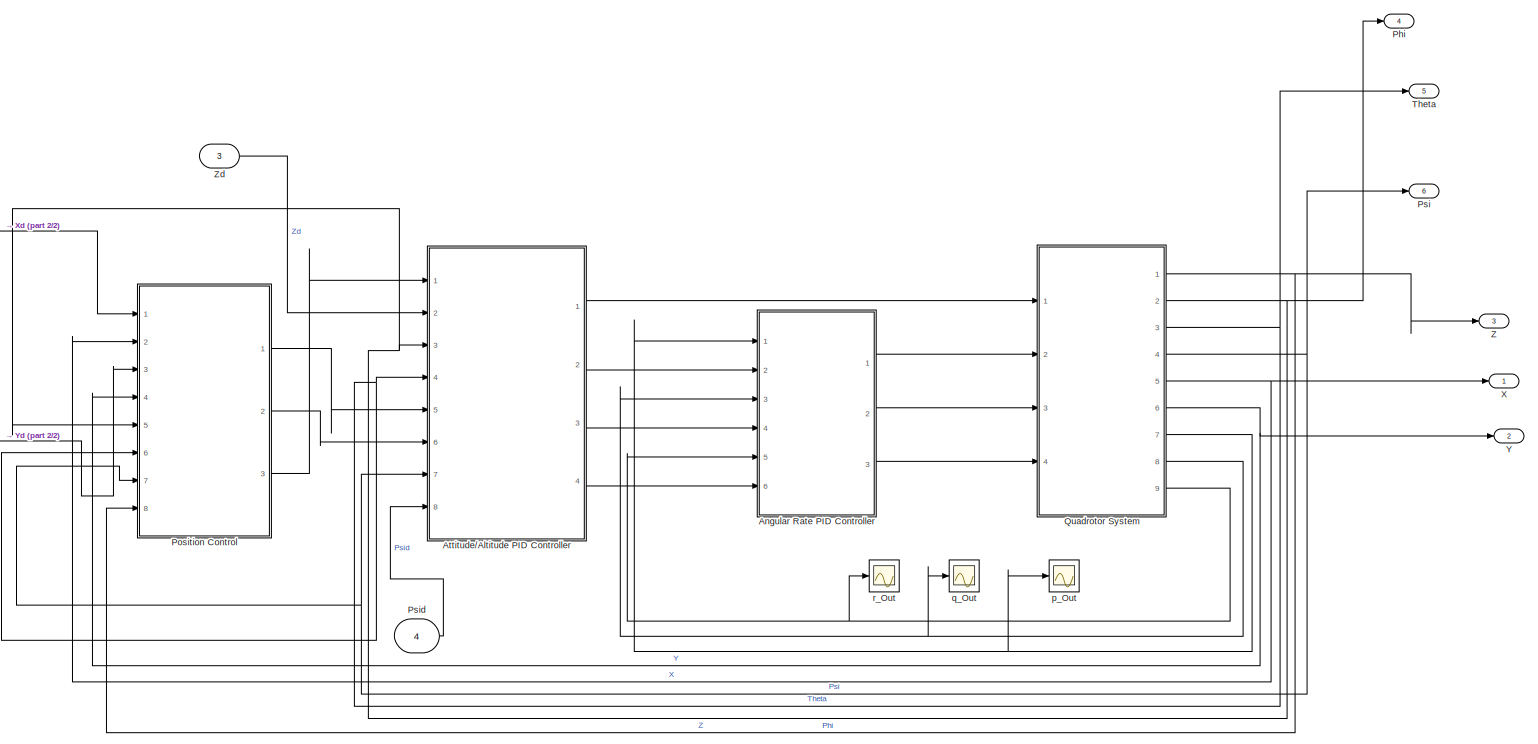
[diagram: root canvas - part 1/2, most of the canvas]
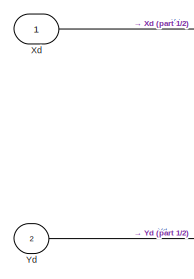
[diagram: root canvas - part 2/2, middle left region]
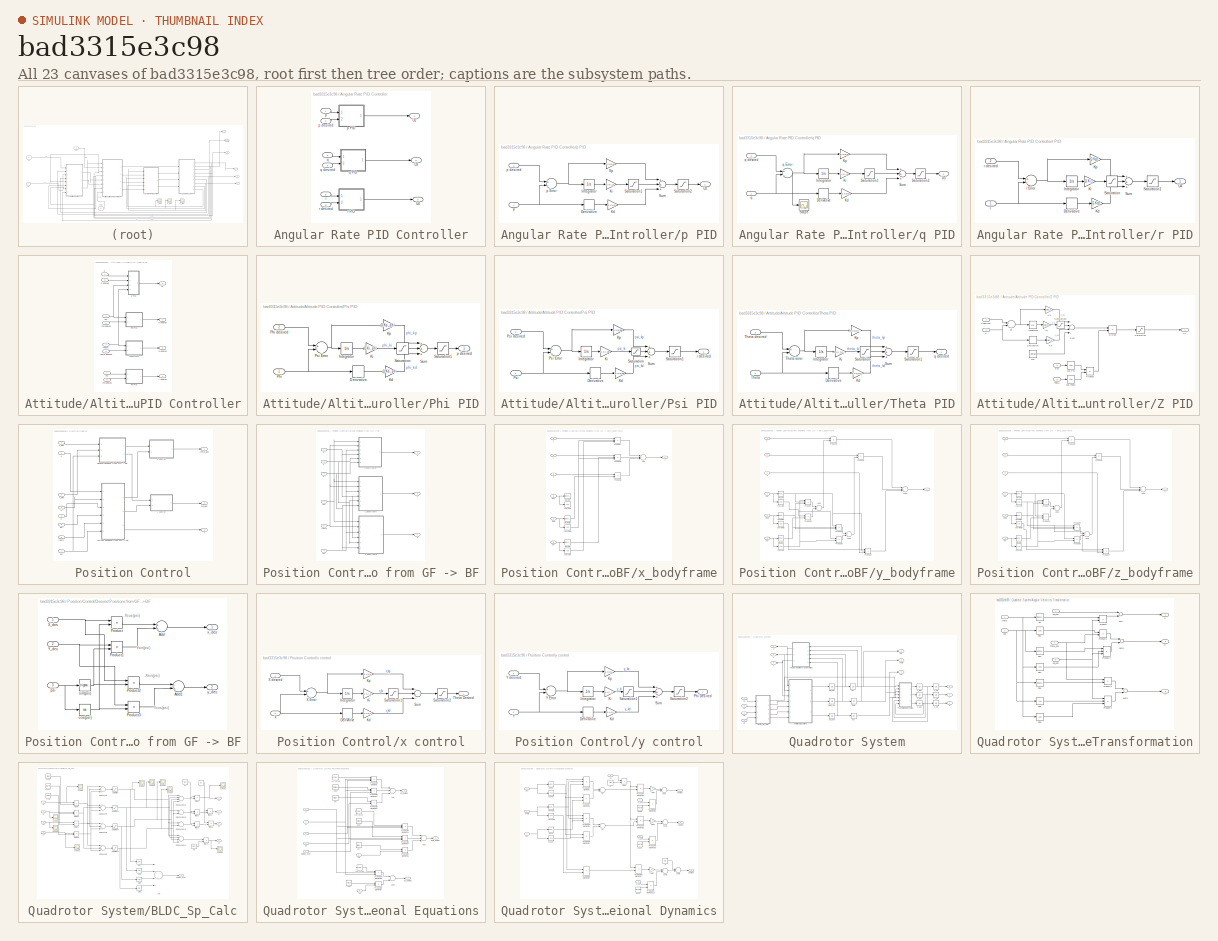
[diagram: thumbnail index - all 23 canvases of the model, root first then tree order]
MODEL slx_bad3315e3c98
KIND model
CONFIG AbsTol = auto
CONFIG EnableMultiTasking = off
CONFIG FixedStep = auto
CONFIG MaxStep = auto
CONFIG MinStep = auto
CONFIG RelTol = 1e-3
CONFIG SampleTimeConstraint = Unconstrained
CONFIG Solver = ode45
CONFIG SolverName = ode45
CONFIG StartTime = 0.0
CONFIG StopTime = 30
BLOCK [SubSystem] Angular Rate PID Controller
  Ports = [6, 3]
  RequestExecContextInheritance = off
BLOCK [Outport] Angular Rate PID Controller/U2
  IconDisplay = Port number
BLOCK [Outport] Angular Rate PID Controller/U3
  IconDisplay = Port number
  Port = 2
BLOCK [Outport] Angular Rate PID Controller/U4
  IconDisplay = Port number
  Port = 3
BLOCK [Inport] Angular Rate PID Controller/p
  IconDisplay = Port number
BLOCK [SubSystem] Angular Rate PID Controller/p PID
  Ports = [2, 1]
  RequestExecContextInheritance = off
BLOCK [Derivative] Angular Rate PID Controller/p PID/Derivative
BLOCK [Integrator] Angular Rate PID Controller/p PID/Integrator
  Ports = [1, 1]
BLOCK [Gain] Angular Rate PID Controller/p PID/Kd
  Gain = Q.Kd_p
  OutDataTypeStr = Inherit: Inherit via internal rule
  ParamDataTypeStr = Inherit: Inherit via internal rule
  SaturateOnIntegerOverflow = off
BLOCK [Gain] Angular Rate PID Controller/p PID/Ki
  Gain = Q.Ki_p
  OutDataTypeStr = Inherit: Inherit via internal rule
  ParamDataTypeStr = Inherit: Inherit via internal rule
  SaturateOnIntegerOverflow = off
BLOCK [Gain] Angular Rate PID Controller/p PID/Kp
  Gain = Q.Kp_p
  OutDataTypeStr = Inherit: Inherit via internal rule
  ParamDataTypeStr = Inherit: Inherit via internal rule
  SaturateOnIntegerOverflow = off
BLOCK [Saturate] Angular Rate PID Controller/p PID/Saturation1
  InputPortMap = u0
  LowerLimit = Q.U2_min
  Ports = [1, 1]
  UpperLimit = Q.U2_max
  ZeroCross = off
BLOCK [Saturate] Angular Rate PID Controller/p PID/Saturation2
  InputPortMap = u0
  LowerLimit = Q.U2_min
  Ports = [1, 1]
  UpperLimit = Q.U2_max
  ZeroCross = off
BLOCK [Sum] Angular Rate PID Controller/p PID/Sum
  InputSameDT = off
  Inputs = +++
  OutDataTypeStr = Inherit: Inherit via internal rule
  Ports = [3, 1]
  SaturateOnIntegerOverflow = off
BLOCK [Outport] Angular Rate PID Controller/p PID/U2
  IconDisplay = Port number
BLOCK [Inport] Angular Rate PID Controller/p PID/p
  IconDisplay = Port number
BLOCK [Sum] Angular Rate PID Controller/p PID/p Error
  InputSameDT = off
  Inputs = +-
  OutDataTypeStr = Inherit: Inherit via internal rule
  Ports = [2, 1]
  SaturateOnIntegerOverflow = off
BLOCK [Inport] Angular Rate PID Controller/p PID/p desired
  IconDisplay = Port number
  Port = 2
BLOCK [Inport] Angular Rate PID Controller/p desired
  IconDisplay = Port number
  Port = 2
BLOCK [Inport] Angular Rate PID Controller/q
  IconDisplay = Port number
  Port = 3
BLOCK [SubSystem] Angular Rate PID Controller/q PID
  Ports = [2, 1]
  RequestExecContextInheritance = off
BLOCK [Derivative] Angular Rate PID Controller/q PID/Derivative
BLOCK [Integrator] Angular Rate PID Controller/q PID/Integrator
  Ports = [1, 1]
BLOCK [Gain] Angular Rate PID Controller/q PID/Kd
  Gain = Q.Kd_q
  OutDataTypeStr = Inherit: Inherit via internal rule
  ParamDataTypeStr = Inherit: Inherit via internal rule
  SaturateOnIntegerOverflow = off
BLOCK [Gain] Angular Rate PID Controller/q PID/Ki
  Gain = Q.Ki_q
  OutDataTypeStr = Inherit: Inherit via internal rule
  ParamDataTypeStr = Inherit: Inherit via internal rule
  SaturateOnIntegerOverflow = off
BLOCK [Gain] Angular Rate PID Controller/q PID/Kp
  Gain = Q.Kp_q
  OutDataTypeStr = Inherit: Inherit via internal rule
  ParamDataTypeStr = Inherit: Inherit via internal rule
  SaturateOnIntegerOverflow = off
BLOCK [Saturate] Angular Rate PID Controller/q PID/Saturation1
  InputPortMap = u0
  LowerLimit = Q.U3_min
  Ports = [1, 1]
  UpperLimit = Q.U3_max
  ZeroCross = off
BLOCK [Saturate] Angular Rate PID Controller/q PID/Saturation2
  InputPortMap = u0
  LowerLimit = Q.U3_min
  Ports = [1, 1]
  UpperLimit = Q.U3_max
  ZeroCross = off
BLOCK [Scope] Angular Rate PID Controller/q PID/Scope
  Floating = off
  NumInputPorts = 1
  Ports = [1]
  ScopeSpecificationString = C++SS(StrPVP('Location','[188, 390, 512, 629]'),StrPVP('Open','off'),MxPVP('AxesTitles',53,'struct(''axes1'',''%<SignalLabel>'')'),StrPVP('SaveName','ScopeData11'),StrPVP('DataFormat','StructureWithTime'),StrPVP('BlockParamSampleTime','0'),StrPVP('LimitDataPoints','on'),StrPVP('Decimation','1'),StrPVP('BlockParamSampleInput','off'))
BLOCK [Sum] Angular Rate PID Controller/q PID/Sum
  InputSameDT = off
  Inputs = +++
  OutDataTypeStr = Inherit: Inherit via internal rule
  Ports = [3, 1]
  SaturateOnIntegerOverflow = off
BLOCK [Outport] Angular Rate PID Controller/q PID/U3
  IconDisplay = Port number
BLOCK [Inport] Angular Rate PID Controller/q PID/q
  IconDisplay = Port number
BLOCK [Sum] Angular Rate PID Controller/q PID/q Error
  InputSameDT = off
  Inputs = +-
  OutDataTypeStr = Inherit: Inherit via internal rule
  Ports = [2, 1]
  SaturateOnIntegerOverflow = off
BLOCK [Inport] Angular Rate PID Controller/q PID/q desired
  IconDisplay = Port number
  Port = 2
BLOCK [Inport] Angular Rate PID Controller/q desired
  IconDisplay = Port number
  Port = 4
BLOCK [Inport] Angular Rate PID Controller/r
  IconDisplay = Port number
  Port = 5
BLOCK [SubSystem] Angular Rate PID Controller/r PID
  Ports = [2, 1]
  RequestExecContextInheritance = off
BLOCK [Derivative] Angular Rate PID Controller/r PID/Derivative
BLOCK [Integrator] Angular Rate PID Controller/r PID/Integrator
  Ports = [1, 1]
BLOCK [Gain] Angular Rate PID Controller/r PID/Kd
  Gain = Q.Kd_r
  OutDataTypeStr = Inherit: Inherit via internal rule
  ParamDataTypeStr = Inherit: Inherit via internal rule
  SaturateOnIntegerOverflow = off
BLOCK [Gain] Angular Rate PID Controller/r PID/Ki
  Gain = Q.Ki_r
  OutDataTypeStr = Inherit: Inherit via internal rule
  ParamDataTypeStr = Inherit: Inherit via internal rule
  SaturateOnIntegerOverflow = off
BLOCK [Gain] Angular Rate PID Controller/r PID/Kp
  Gain = Q.Kp_r
  OutDataTypeStr = Inherit: Inherit via internal rule
  ParamDataTypeStr = Inherit: Inherit via internal rule
  SaturateOnIntegerOverflow = off
BLOCK [Saturate] Angular Rate PID Controller/r PID/Saturation
  InputPortMap = u0
  LowerLimit = Q.U4_min
  Ports = [1, 1]
  UpperLimit = Q.U4_max
  ZeroCross = off
BLOCK [Saturate] Angular Rate PID Controller/r PID/Saturation1
  InputPortMap = u0
  LowerLimit = Q.U4_min
  Ports = [1, 1]
  UpperLimit = Q.U4_max
  ZeroCross = off
BLOCK [Sum] Angular Rate PID Controller/r PID/Sum
  InputSameDT = off
  Inputs = +++
  OutDataTypeStr = Inherit: Inherit via internal rule
  Ports = [3, 1]
  SaturateOnIntegerOverflow = off
BLOCK [Outport] Angular Rate PID Controller/r PID/U4
  IconDisplay = Port number
BLOCK [Inport] Angular Rate PID Controller/r PID/r
  IconDisplay = Port number
BLOCK [Sum] Angular Rate PID Controller/r PID/r Error
  InputSameDT = off
  Inputs = +-
  OutDataTypeStr = Inherit: Inherit via internal rule
  Ports = [2, 1]
  SaturateOnIntegerOverflow = off
BLOCK [Inport] Angular Rate PID Controller/r PID/r desired
  IconDisplay = Port number
  Port = 2
BLOCK [Inport] Angular Rate PID Controller/r desired
  IconDisplay = Port number
  Port = 6
BLOCK [SubSystem] Attitude//Altitude PID Controller
  Ports = [8, 4]
  RequestExecContextInheritance = off
BLOCK [Inport] Attitude//Altitude PID Controller/Phi
  IconDisplay = Port number
  Port = 3
BLOCK [SubSystem] Attitude//Altitude PID Controller/Phi PID
  Ports = [2, 1]
  RequestExecContextInheritance = off
BLOCK [Derivative] Attitude//Altitude PID Controller/Phi PID/Derivative
BLOCK [Integrator] Attitude//Altitude PID Controller/Phi PID/Integrator
  Ports = [1, 1]
BLOCK [Gain] Attitude//Altitude PID Controller/Phi PID/Kd
  Gain = Q.Kd_phi
  OutDataTypeStr = Inherit: Inherit via internal rule
  ParamDataTypeStr = Inherit: Inherit via internal rule
  SaturateOnIntegerOverflow = off
BLOCK [Gain] Attitude//Altitude PID Controller/Phi PID/Ki
  Gain = Q.Ki_phi
  OutDataTypeStr = Inherit: Inherit via internal rule
  ParamDataTypeStr = Inherit: Inherit via internal rule
  SaturateOnIntegerOverflow = off
BLOCK [Gain] Attitude//Altitude PID Controller/Phi PID/Kp
  Gain = Q.Kp_phi
  OutDataTypeStr = Inherit: Inherit via internal rule
  ParamDataTypeStr = Inherit: Inherit via internal rule
  SaturateOnIntegerOverflow = off
BLOCK [Inport] Attitude//Altitude PID Controller/Phi PID/Phi
  IconDisplay = Port number
BLOCK [Inport] Attitude//Altitude PID Controller/Phi PID/Phi desired
  IconDisplay = Port number
  Port = 2
BLOCK [Sum] Attitude//Altitude PID Controller/Phi PID/Psi Error
  InputSameDT = off
  Inputs = +-
  OutDataTypeStr = Inherit: Inherit via internal rule
  Ports = [2, 1]
  SaturateOnIntegerOverflow = off
BLOCK [Saturate] Attitude//Altitude PID Controller/Phi PID/Saturation
  InputPortMap = u0
  LowerLimit = -Q.p_max
  Ports = [1, 1]
  UpperLimit = Q.p_max
  ZeroCross = off
BLOCK [Saturate] Attitude//Altitude PID Controller/Phi PID/Saturation1
  InputPortMap = u0
  LowerLimit = -Q.p_max
  Ports = [1, 1]
  UpperLimit = Q.p_max
  ZeroCross = off
BLOCK [Sum] Attitude//Altitude PID Controller/Phi PID/Sum
  InputSameDT = off
  Inputs = +++
  OutDataTypeStr = Inherit: Inherit via internal rule
  Ports = [3, 1]
  SaturateOnIntegerOverflow = off
BLOCK [Outport] Attitude//Altitude PID Controller/Phi PID/p desired
  IconDisplay = Port number
BLOCK [Inport] Attitude//Altitude PID Controller/Phi desired
  IconDisplay = Port number
  Port = 6
BLOCK [Inport] Attitude//Altitude PID Controller/Psi
  IconDisplay = Port number
  Port = 7
BLOCK [SubSystem] Attitude//Altitude PID Controller/Psi PID
  Ports = [2, 1]
  RequestExecContextInheritance = off
BLOCK [Derivative] Attitude//Altitude PID Controller/Psi PID/Derivative
BLOCK [Integrator] Attitude//Altitude PID Controller/Psi PID/Integrator
  Ports = [1, 1]
BLOCK [Gain] Attitude//Altitude PID Controller/Psi PID/Kd
  Gain = Q.Kd_psi
  OutDataTypeStr = Inherit: Inherit via internal rule
  ParamDataTypeStr = Inherit: Inherit via internal rule
  SaturateOnIntegerOverflow = off
BLOCK [Gain] Attitude//Altitude PID Controller/Psi PID/Ki
  Gain = Q.Ki_psi
  OutDataTypeStr = Inherit: Inherit via internal rule
  ParamDataTypeStr = Inherit: Inherit via internal rule
  SaturateOnIntegerOverflow = off
BLOCK [Gain] Attitude//Altitude PID Controller/Psi PID/Kp
  Gain = Q.Kp_psi
  OutDataTypeStr = Inherit: Inherit via internal rule
  ParamDataTypeStr = Inherit: Inherit via internal rule
  SaturateOnIntegerOverflow = off
BLOCK [Inport] Attitude//Altitude PID Controller/Psi PID/Psi
  IconDisplay = Port number
BLOCK [Sum] Attitude//Altitude PID Controller/Psi PID/Psi Error
  InputSameDT = off
  Inputs = +-
  OutDataTypeStr = Inherit: Inherit via internal rule
  Ports = [2, 1]
  SaturateOnIntegerOverflow = off
BLOCK [Inport] Attitude//Altitude PID Controller/Psi PID/Psi desired
  IconDisplay = Port number
  Port = 2
BLOCK [Saturate] Attitude//Altitude PID Controller/Psi PID/Saturation
  InputPortMap = u0
  LowerLimit = -Q.r_max
  Ports = [1, 1]
  UpperLimit = Q.r_max
  ZeroCross = off
BLOCK [Saturate] Attitude//Altitude PID Controller/Psi PID/Saturation1
  InputPortMap = u0
  LowerLimit = -Q.r_max
  Ports = [1, 1]
  UpperLimit = Q.r_max
  ZeroCross = off
BLOCK [Sum] Attitude//Altitude PID Controller/Psi PID/Sum
  InputSameDT = off
  Inputs = +++
  OutDataTypeStr = Inherit: Inherit via internal rule
  Ports = [3, 1]
  SaturateOnIntegerOverflow = off
BLOCK [Outport] Attitude//Altitude PID Controller/Psi PID/r desired
  IconDisplay = Port number
BLOCK [Inport] Attitude//Altitude PID Controller/Psi desired
  IconDisplay = Port number
  Port = 8
BLOCK [Inport] Attitude//Altitude PID Controller/Theta
  IconDisplay = Port number
  Port = 4
BLOCK [SubSystem] Attitude//Altitude PID Controller/Theta PID
  Ports = [2, 1]
  RequestExecContextInheritance = off
BLOCK [Derivative] Attitude//Altitude PID Controller/Theta PID/Derivative
BLOCK [Integrator] Attitude//Altitude PID Controller/Theta PID/Integrator
  Ports = [1, 1]
BLOCK [Gain] Attitude//Altitude PID Controller/Theta PID/Kd
  Gain = Q.Kd_theta
  OutDataTypeStr = Inherit: Inherit via internal rule
  ParamDataTypeStr = Inherit: Inherit via internal rule
  SaturateOnIntegerOverflow = off
BLOCK [Gain] Attitude//Altitude PID Controller/Theta PID/Ki
  Gain = Q.Ki_theta
  OutDataTypeStr = Inherit: Inherit via internal rule
  ParamDataTypeStr = Inherit: Inherit via internal rule
  SaturateOnIntegerOverflow = off
BLOCK [Gain] Attitude//Altitude PID Controller/Theta PID/Kp
  Gain = Q.Kp_theta
  OutDataTypeStr = Inherit: Inherit via internal rule
  ParamDataTypeStr = Inherit: Inherit via internal rule
  SaturateOnIntegerOverflow = off
BLOCK [Saturate] Attitude//Altitude PID Controller/Theta PID/Saturation
  InputPortMap = u0
  LowerLimit = -Q.q_max
  Ports = [1, 1]
  UpperLimit = Q.q_max
  ZeroCross = off
BLOCK [Saturate] Attitude//Altitude PID Controller/Theta PID/Saturation1
  InputPortMap = u0
  LowerLimit = -Q.q_max
  Ports = [1, 1]
  UpperLimit = Q.q_max
  ZeroCross = off
BLOCK [Sum] Attitude//Altitude PID Controller/Theta PID/Sum
  InputSameDT = off
  Inputs = +++
  OutDataTypeStr = Inherit: Inherit via internal rule
  Ports = [3, 1]
  SaturateOnIntegerOverflow = off
BLOCK [Inport] Attitude//Altitude PID Controller/Theta PID/Theta
  IconDisplay = Port number
BLOCK [Sum] Attitude//Altitude PID Controller/Theta PID/Theta Error
  InputSameDT = off
  Inputs = +-
  OutDataTypeStr = Inherit: Inherit via internal rule
  Ports = [2, 1]
  SaturateOnIntegerOverflow = off
BLOCK [Inport] Attitude//Altitude PID Controller/Theta PID/Theta desired
  IconDisplay = Port number
  Port = 2
BLOCK [Outport] Attitude//Altitude PID Controller/Theta PID/q desired
  IconDisplay = Port number
BLOCK [Inport] Attitude//Altitude PID Controller/Theta desired
  IconDisplay = Port number
  Port = 5
BLOCK [Outport] Attitude//Altitude PID Controller/U1
  IconDisplay = Port number
BLOCK [Inport] Attitude//Altitude PID Controller/Z
  IconDisplay = Port number
BLOCK [SubSystem] Attitude//Altitude PID Controller/Z PID
  Ports = [4, 1]
  RequestExecContextInheritance = off
BLOCK [Derivative] Attitude//Altitude PID Controller/Z PID/Derivative
BLOCK [Product] Attitude//Altitude PID Controller/Z PID/Divide
  InputSameDT = off
  Inputs = */
  OutDataTypeStr = Inherit: Inherit via internal rule
  Ports = [2, 1]
  RndMeth = Floor
  SaturateOnIntegerOverflow = off
BLOCK [Integrator] Attitude//Altitude PID Controller/Z PID/Integrator
  Ports = [1, 1]
BLOCK [Gain] Attitude//Altitude PID Controller/Z PID/Kd
  Gain = Q.Kd_z
  OutDataTypeStr = Inherit: Inherit via internal rule
  ParamDataTypeStr = Inherit: Inherit via internal rule
  SaturateOnIntegerOverflow = off
BLOCK [Gain] Attitude//Altitude PID Controller/Z PID/Ki
  Gain = Q.Ki_z
  OutDataTypeStr = Inherit: Inherit via internal rule
  ParamDataTypeStr = Inherit: Inherit via internal rule
  SaturateOnIntegerOverflow = off
BLOCK [Gain] Attitude//Altitude PID Controller/Z PID/Kp
  Gain = Q.Kp_z
  OutDataTypeStr = Inherit: Inherit via internal rule
  ParamDataTypeStr = Inherit: Inherit via internal rule
  SaturateOnIntegerOverflow = off
BLOCK [Inport] Attitude//Altitude PID Controller/Z PID/Phi
  IconDisplay = Port number
  Port = 3
BLOCK [Product] Attitude//Altitude PID Controller/Z PID/Product
  InputSameDT = off
  OutDataTypeStr = Inherit: Inherit via internal rule
  Ports = [2, 1]
  SaturateOnIntegerOverflow = off
BLOCK [Saturate] Attitude//Altitude PID Controller/Z PID/Saturation
  InputPortMap = u0
  LowerLimit = Q.U1_min
  Ports = [1, 1]
  UpperLimit = Q.U1_max
  ZeroCross = off
BLOCK [Saturate] Attitude//Altitude PID Controller/Z PID/Saturation1
  InputPortMap = u0
  LowerLimit = Q.U1_min
  Ports = [1, 1]
  UpperLimit = Q.U1_max
  ZeroCross = off
BLOCK [Sum] Attitude//Altitude PID Controller/Z PID/Sum
  InputSameDT = off
  Inputs = ---+
  OutDataTypeStr = Inherit: Inherit via internal rule
  Ports = [4, 1]
  SaturateOnIntegerOverflow = off
BLOCK [Inport] Attitude//Altitude PID Controller/Z PID/Theta
  IconDisplay = Port number
  Port = 4
BLOCK [Outport] Attitude//Altitude PID Controller/Z PID/U1
  IconDisplay = Port number
BLOCK [Inport] Attitude//Altitude PID Controller/Z PID/Z
  IconDisplay = Port number
BLOCK [Inport] Attitude//Altitude PID Controller/Z PID/Z desired
  IconDisplay = Port number
  Port = 2
BLOCK [Trigonometry] Attitude//Altitude PID Controller/Z PID/cos Phi
  Operator = cos
  Ports = [1, 1]
BLOCK [Trigonometry] Attitude//Altitude PID Controller/Z PID/cos Theta
  Operator = cos
  Ports = [1, 1]
BLOCK [Sum] Attitude//Altitude PID Controller/Z PID/ez
  InputSameDT = off
  Inputs = +-
  OutDataTypeStr = Inherit: Inherit via internal rule
  Ports = [2, 1]
  SaturateOnIntegerOverflow = off
BLOCK [Constant] Attitude//Altitude PID Controller/Z PID/mg
  Value = Q.m*Q.g
BLOCK [Inport] Attitude//Altitude PID Controller/Z desired
  IconDisplay = Port number
  Port = 2
BLOCK [Outport] Attitude//Altitude PID Controller/p desired
  IconDisplay = Port number
  Port = 2
BLOCK [Outport] Attitude//Altitude PID Controller/q desired
  IconDisplay = Port number
  Port = 3
BLOCK [Outport] Attitude//Altitude PID Controller/r desired
  IconDisplay = Port number
  Port = 4
BLOCK [Outport] Phi
  IconDisplay = Port number
  Port = 4
BLOCK [SubSystem] Position Control
  Ports = [8, 3]
  RequestExecContextInheritance = off
BLOCK [SubSystem] Position Control/Current Positions from GF -> BF
  Ports = [6, 3]
  RequestExecContextInheritance = off
BLOCK [Inport] Position Control/Current Positions from GF -> BF/Psi
  IconDisplay = Port number
  Port = 6
BLOCK [Inport] Position Control/Current Positions from GF -> BF/X
  IconDisplay = Port number
BLOCK [Inport] Position Control/Current Positions from GF -> BF/Y
  IconDisplay = Port number
  Port = 2
BLOCK [Inport] Position Control/Current Positions from GF -> BF/Z
  IconDisplay = Port number
  Port = 3
BLOCK [Inport] Position Control/Current Positions from GF -> BF/phi
  IconDisplay = Port number
  Port = 4
BLOCK [Inport] Position Control/Current Positions from GF -> BF/theta
  IconDisplay = Port number
  Port = 5
BLOCK [Outport] Position Control/Current Positions from GF -> BF/x
  IconDisplay = Port number
BLOCK [SubSystem] Position Control/Current Positions from GF -> BF/x_bodyframe
  Ports = [6, 1]
  RequestExecContextInheritance = off
BLOCK [Sum] Position Control/Current Positions from GF -> BF/x_bodyframe/Add
  InputSameDT = off
  Inputs = ++-
  OutDataTypeStr = Inherit: Inherit via internal rule
  Ports = [3, 1]
  SaturateOnIntegerOverflow = off
BLOCK [Product] Position Control/Current Positions from GF -> BF/x_bodyframe/Product
  InputSameDT = off
  Inputs = 3
  OutDataTypeStr = Inherit: Inherit via internal rule
  Ports = [3, 1]
  RndMeth = Floor
  SaturateOnIntegerOverflow = off
BLOCK [Product] Position Control/Current Positions from GF -> BF/x_bodyframe/Product1
  InputSameDT = off
  Inputs = 3
  OutDataTypeStr = Inherit: Inherit via internal rule
  Ports = [3, 1]
  RndMeth = Floor
  SaturateOnIntegerOverflow = off
BLOCK [Product] Position Control/Current Positions from GF -> BF/x_bodyframe/Product2
  InputSameDT = off
  OutDataTypeStr = Inherit: Inherit via internal rule
  Ports = [2, 1]
  RndMeth = Floor
  SaturateOnIntegerOverflow = off
BLOCK [Inport] Position Control/Current Positions from GF -> BF/x_bodyframe/X
  IconDisplay = Port number
  Port = 4
BLOCK [Inport] Position Control/Current Positions from GF -> BF/x_bodyframe/Y
  IconDisplay = Port number
  Port = 5
BLOCK [Inport] Position Control/Current Positions from GF -> BF/x_bodyframe/Z
  IconDisplay = Port number
  Port = 6
BLOCK [Trigonometry] Position Control/Current Positions from GF -> BF/x_bodyframe/cos(phi)
  Operator = cos
  Ports = [1, 1]
BLOCK [Trigonometry] Position Control/Current Positions from GF -> BF/x_bodyframe/cos(psi)
  Operator = cos
  Ports = [1, 1]
BLOCK [Trigonometry] Position Control/Current Positions from GF -> BF/x_bodyframe/cos(theta)
  Operator = cos
  Ports = [1, 1]
BLOCK [Inport] Position Control/Current Positions from GF -> BF/x_bodyframe/phi
  IconDisplay = Port number
BLOCK [Inport] Position Control/Current Positions from GF -> BF/x_bodyframe/psi
  IconDisplay = Port number
  Port = 3
BLOCK [Trigonometry] Position Control/Current Positions from GF -> BF/x_bodyframe/sin(phi)
  Ports = [1, 1]
BLOCK [Trigonometry] Position Control/Current Positions from GF -> BF/x_bodyframe/sin(psi)
  Ports = [1, 1]
BLOCK [Trigonometry] Position Control/Current Positions from GF -> BF/x_bodyframe/sin(theta)
  Ports = [1, 1]
BLOCK [Inport] Position Control/Current Positions from GF -> BF/x_bodyframe/theta
  IconDisplay = Port number
  Port = 2
BLOCK [Outport] Position Control/Current Positions from GF -> BF/x_bodyframe/x
  IconDisplay = Port number
BLOCK [Outport] Position Control/Current Positions from GF -> BF/y
  IconDisplay = Port number
  Port = 2
BLOCK [SubSystem] Position Control/Current Positions from GF -> BF/y_bodyframe
  Ports = [6, 1]
  RequestExecContextInheritance = off
BLOCK [Sum] Position Control/Current Positions from GF -> BF/y_bodyframe/Add1
  InputSameDT = off
  Inputs = +-
  OutDataTypeStr = Inherit: Inherit via internal rule
  Ports = [2, 1]
  SaturateOnIntegerOverflow = off
BLOCK [Sum] Position Control/Current Positions from GF -> BF/y_bodyframe/Add2
  InputSameDT = off
  OutDataTypeStr = Inherit: Inherit via internal rule
  Ports = [2, 1]
  SaturateOnIntegerOverflow = off
BLOCK [Sum] Position Control/Current Positions from GF -> BF/y_bodyframe/Add3
  InputSameDT = off
  Inputs = +++
  OutDataTypeStr = Inherit: Inherit via internal rule
  Ports = [3, 1]
  SaturateOnIntegerOverflow = off
BLOCK [Product] Position Control/Current Positions from GF -> BF/y_bodyframe/Product
  InputSameDT = off
  Inputs = 3
  OutDataTypeStr = Inherit: Inherit via internal rule
  Ports = [3, 1]
  RndMeth = Floor
  SaturateOnIntegerOverflow = off
BLOCK [Product] Position Control/Current Positions from GF -> BF/y_bodyframe/Product2
  InputSameDT = off
  OutDataTypeStr = Inherit: Inherit via internal rule
  Ports = [2, 1]
  RndMeth = Floor
  SaturateOnIntegerOverflow = off
BLOCK [Product] Position Control/Current Positions from GF -> BF/y_bodyframe/Product3
  InputSameDT = off
  OutDataTypeStr = Inherit: Inherit via internal rule
  Ports = [2, 1]
  RndMeth = Floor
  SaturateOnIntegerOverflow = off
BLOCK [Product] Position Control/Current Positions from GF -> BF/y_bodyframe/Product4
  InputSameDT = off
  Inputs = 3
  OutDataTypeStr = Inherit: Inherit via internal rule
  Ports = [3, 1]
  RndMeth = Floor
  SaturateOnIntegerOverflow = off
BLOCK [Product] Position Control/Current Positions from GF -> BF/y_bodyframe/Product5
  InputSameDT = off
  OutDataTypeStr = Inherit: Inherit via internal rule
  Ports = [2, 1]
  RndMeth = Floor
  SaturateOnIntegerOverflow = off
BLOCK [Product] Position Control/Current Positions from GF -> BF/y_bodyframe/Product6
  InputSameDT = off
  OutDataTypeStr = Inherit: Inherit via internal rule
  Ports = [2, 1]
  RndMeth = Floor
  SaturateOnIntegerOverflow = off
BLOCK [Product] Position Control/Current Positions from GF -> BF/y_bodyframe/Product7
  InputSameDT = off
  Inputs = 3
  OutDataTypeStr = Inherit: Inherit via internal rule
  Ports = [3, 1]
  RndMeth = Floor
  SaturateOnIntegerOverflow = off
BLOCK [Inport] Position Control/Current Positions from GF -> BF/y_bodyframe/X
  IconDisplay = Port number
  Port = 4
BLOCK [Inport] Position Control/Current Positions from GF -> BF/y_bodyframe/Y
  IconDisplay = Port number
  Port = 5
BLOCK [Inport] Position Control/Current Positions from GF -> BF/y_bodyframe/Z
  IconDisplay = Port number
  Port = 6
BLOCK [Trigonometry] Position Control/Current Positions from GF -> BF/y_bodyframe/cos(phi)
  Operator = cos
  Ports = [1, 1]
BLOCK [Trigonometry] Position Control/Current Positions from GF -> BF/y_bodyframe/cos(psi)
  Operator = cos
  Ports = [1, 1]
BLOCK [Trigonometry] Position Control/Current Positions from GF -> BF/y_bodyframe/cos(theta)
  Operator = cos
  Ports = [1, 1]
BLOCK [Inport] Position Control/Current Positions from GF -> BF/y_bodyframe/phi
  IconDisplay = Port number
BLOCK [Inport] Position Control/Current Positions from GF -> BF/y_bodyframe/psi
  IconDisplay = Port number
  Port = 3
BLOCK [Trigonometry] Position Control/Current Positions from GF -> BF/y_bodyframe/sin(phi)
  Ports = [1, 1]
BLOCK [Trigonometry] Position Control/Current Positions from GF -> BF/y_bodyframe/sin(psi)
  Ports = [1, 1]
BLOCK [Trigonometry] Position Control/Current Positions from GF -> BF/y_bodyframe/sin(theta)
  Ports = [1, 1]
BLOCK [Inport] Position Control/Current Positions from GF -> BF/y_bodyframe/theta
  IconDisplay = Port number
  Port = 2
BLOCK [Outport] Position Control/Current Positions from GF -> BF/y_bodyframe/y
  IconDisplay = Port number
BLOCK [Outport] Position Control/Current Positions from GF -> BF/z
  IconDisplay = Port number
  Port = 3
BLOCK [SubSystem] Position Control/Current Positions from GF -> BF/z_bodyframe
  Ports = [6, 1]
  RequestExecContextInheritance = off
BLOCK [Sum] Position Control/Current Positions from GF -> BF/z_bodyframe/Add1
  InputSameDT = off
  OutDataTypeStr = Inherit: Inherit via internal rule
  Ports = [2, 1]
  SaturateOnIntegerOverflow = off
BLOCK [Sum] Position Control/Current Positions from GF -> BF/z_bodyframe/Add2
  InputSameDT = off
  Inputs = +-
  OutDataTypeStr = Inherit: Inherit via internal rule
  Ports = [2, 1]
  SaturateOnIntegerOverflow = off
BLOCK [Sum] Position Control/Current Positions from GF -> BF/z_bodyframe/Add3
  InputSameDT = off
  Inputs = +++
  OutDataTypeStr = Inherit: Inherit via internal rule
  Ports = [3, 1]
  SaturateOnIntegerOverflow = off
BLOCK [Product] Position Control/Current Positions from GF -> BF/z_bodyframe/Product
  InputSameDT = off
  Inputs = 3
  OutDataTypeStr = Inherit: Inherit via internal rule
  Ports = [3, 1]
  RndMeth = Floor
  SaturateOnIntegerOverflow = off
BLOCK [Product] Position Control/Current Positions from GF -> BF/z_bodyframe/Product2
  InputSameDT = off
  OutDataTypeStr = Inherit: Inherit via internal rule
  Ports = [2, 1]
  RndMeth = Floor
  SaturateOnIntegerOverflow = off
BLOCK [Product] Position Control/Current Positions from GF -> BF/z_bodyframe/Product3
  InputSameDT = off
  OutDataTypeStr = Inherit: Inherit via internal rule
  Ports = [2, 1]
  RndMeth = Floor
  SaturateOnIntegerOverflow = off
BLOCK [Product] Position Control/Current Positions from GF -> BF/z_bodyframe/Product4
  InputSameDT = off
  Inputs = 3
  OutDataTypeStr = Inherit: Inherit via internal rule
  Ports = [3, 1]
  RndMeth = Floor
  SaturateOnIntegerOverflow = off
BLOCK [Product] Position Control/Current Positions from GF -> BF/z_bodyframe/Product5
  InputSameDT = off
  OutDataTypeStr = Inherit: Inherit via internal rule
  Ports = [2, 1]
  RndMeth = Floor
  SaturateOnIntegerOverflow = off
BLOCK [Product] Position Control/Current Positions from GF -> BF/z_bodyframe/Product6
  InputSameDT = off
  OutDataTypeStr = Inherit: Inherit via internal rule
  Ports = [2, 1]
  RndMeth = Floor
  SaturateOnIntegerOverflow = off
BLOCK [Product] Position Control/Current Positions from GF -> BF/z_bodyframe/Product7
  InputSameDT = off
  Inputs = 3
  OutDataTypeStr = Inherit: Inherit via internal rule
  Ports = [3, 1]
  RndMeth = Floor
  SaturateOnIntegerOverflow = off
BLOCK [Inport] Position Control/Current Positions from GF -> BF/z_bodyframe/X
  IconDisplay = Port number
  Port = 4
BLOCK [Inport] Position Control/Current Positions from GF -> BF/z_bodyframe/Y
  IconDisplay = Port number
  Port = 5
BLOCK [Inport] Position Control/Current Positions from GF -> BF/z_bodyframe/Z
  IconDisplay = Port number
  Port = 6
BLOCK [Trigonometry] Position Control/Current Positions from GF -> BF/z_bodyframe/cos(phi)
  Operator = cos
  Ports = [1, 1]
BLOCK [Trigonometry] Position Control/Current Positions from GF -> BF/z_bodyframe/cos(psi)
  Operator = cos
  Ports = [1, 1]
BLOCK [Trigonometry] Position Control/Current Positions from GF -> BF/z_bodyframe/cos(theta)
  Operator = cos
  Ports = [1, 1]
BLOCK [Inport] Position Control/Current Positions from GF -> BF/z_bodyframe/phi
  IconDisplay = Port number
BLOCK [Inport] Position Control/Current Positions from GF -> BF/z_bodyframe/psi
  IconDisplay = Port number
  Port = 3
BLOCK [Trigonometry] Position Control/Current Positions from GF -> BF/z_bodyframe/sin(phi)
  Ports = [1, 1]
BLOCK [Trigonometry] Position Control/Current Positions from GF -> BF/z_bodyframe/sin(psi)
  Ports = [1, 1]
BLOCK [Trigonometry] Position Control/Current Positions from GF -> BF/z_bodyframe/sin(theta)
  Ports = [1, 1]
BLOCK [Inport] Position Control/Current Positions from GF -> BF/z_bodyframe/theta
  IconDisplay = Port number
  Port = 2
BLOCK [Outport] Position Control/Current Positions from GF -> BF/z_bodyframe/z
  IconDisplay = Port number
BLOCK [SubSystem] Position Control/Desired Positions from GF -> BF
  Ports = [3, 2]
  RequestExecContextInheritance = off
BLOCK [Sum] Position Control/Desired Positions from GF -> BF/Add
  InputSameDT = off
  OutDataTypeStr = Inherit: Inherit via internal rule
  Ports = [2, 1]
  SaturateOnIntegerOverflow = off
BLOCK [Sum] Position Control/Desired Positions from GF -> BF/Add1
  InputSameDT = off
  Inputs = -+
  OutDataTypeStr = Inherit: Inherit via internal rule
  Ports = [2, 1]
  SaturateOnIntegerOverflow = off
BLOCK [Product] Position Control/Desired Positions from GF -> BF/Product
  InputSameDT = off
  OutDataTypeStr = Inherit: Inherit via internal rule
  Ports = [2, 1]
  RndMeth = Floor
  SaturateOnIntegerOverflow = off
BLOCK [Product] Position Control/Desired Positions from GF -> BF/Product1
  InputSameDT = off
  OutDataTypeStr = Inherit: Inherit via internal rule
  Ports = [2, 1]
  RndMeth = Floor
  SaturateOnIntegerOverflow = off
BLOCK [Product] Position Control/Desired Positions from GF -> BF/Product2
  InputSameDT = off
  OutDataTypeStr = Inherit: Inherit via internal rule
  Ports = [2, 1]
  RndMeth = Floor
  SaturateOnIntegerOverflow = off
BLOCK [Product] Position Control/Desired Positions from GF -> BF/Product3
  InputSameDT = off
  OutDataTypeStr = Inherit: Inherit via internal rule
  Ports = [2, 1]
  RndMeth = Floor
  SaturateOnIntegerOverflow = off
BLOCK [Inport] Position Control/Desired Positions from GF -> BF/X_des
  IconDisplay = Port number
BLOCK [Inport] Position Control/Desired Positions from GF -> BF/Y_des
  IconDisplay = Port number
  Port = 2
BLOCK [Trigonometry] Position Control/Desired Positions from GF -> BF/cos(psi)
  Operator = cos
  Ports = [1, 1]
BLOCK [Inport] Position Control/Desired Positions from GF -> BF/psi
  IconDisplay = Port number
  Port = 3
BLOCK [Trigonometry] Position Control/Desired Positions from GF -> BF/sin(psi)
  Ports = [1, 1]
BLOCK [Outport] Position Control/Desired Positions from GF -> BF/x_des
  IconDisplay = Port number
BLOCK [Outport] Position Control/Desired Positions from GF -> BF/y_des
  IconDisplay = Port number
  Port = 2
BLOCK [Inport] Position Control/X
  IconDisplay = Port number
  Port = 2
BLOCK [Inport] Position Control/X_des
  IconDisplay = Port number
BLOCK [Inport] Position Control/Y
  IconDisplay = Port number
  Port = 4
BLOCK [Inport] Position Control/Y_des
  IconDisplay = Port number
  Port = 3
BLOCK [Inport] Position Control/Z
  IconDisplay = Port number
  Port = 8
BLOCK [Inport] Position Control/phi
  IconDisplay = Port number
  Port = 5
BLOCK [Outport] Position Control/phi_des
  IconDisplay = Port number
  Port = 2
BLOCK [Inport] Position Control/psi
  IconDisplay = Port number
  Port = 7
BLOCK [Inport] Position Control/theta
  IconDisplay = Port number
  Port = 6
BLOCK [Outport] Position Control/theta_des
  IconDisplay = Port number
BLOCK [SubSystem] Position Control/x control
  Ports = [2, 1]
  RequestExecContextInheritance = off
BLOCK [Derivative] Position Control/x control/Derivative
BLOCK [Integrator] Position Control/x control/Integrator
  Ports = [1, 1]
BLOCK [Gain] Position Control/x control/Kd
  Gain = Q.Kd_x
  OutDataTypeStr = Inherit: Inherit via internal rule
  ParamDataTypeStr = Inherit: Inherit via internal rule
  SaturateOnIntegerOverflow = off
BLOCK [Gain] Position Control/x control/Ki
  Gain = Q.Ki_x
  OutDataTypeStr = Inherit: Inherit via internal rule
  ParamDataTypeStr = Inherit: Inherit via internal rule
  SaturateOnIntegerOverflow = off
BLOCK [Gain] Position Control/x control/Kp
  Gain = Q.Kp_x
  OutDataTypeStr = Inherit: Inherit via internal rule
  ParamDataTypeStr = Inherit: Inherit via internal rule
  SaturateOnIntegerOverflow = off
BLOCK [Saturate] Position Control/x control/Saturation1
  InputPortMap = u0
  LowerLimit = -Q.theta_max
  Ports = [1, 1]
  UpperLimit = Q.theta_max
  ZeroCross = off
BLOCK [Saturate] Position Control/x control/Saturation2
  InputPortMap = u0
  LowerLimit = -Q.theta_max
  Ports = [1, 1]
  UpperLimit = Q.theta_max
  ZeroCross = off
BLOCK [Sum] Position Control/x control/Sum
  InputSameDT = off
  Inputs = ---
  OutDataTypeStr = Inherit: Inherit via internal rule
  Ports = [3, 1]
  SaturateOnIntegerOverflow = off
BLOCK [Outport] Position Control/x control/Theta Desired
  IconDisplay = Port number
BLOCK [Inport] Position Control/x control/X
  IconDisplay = Port number
  Port = 2
BLOCK [Sum] Position Control/x control/X Error
  InputSameDT = off
  Inputs = +-
  OutDataTypeStr = Inherit: Inherit via internal rule
  Ports = [2, 1]
  SaturateOnIntegerOverflow = off
BLOCK [Inport] Position Control/x control/X desired
  IconDisplay = Port number
BLOCK [SubSystem] Position Control/y control
  Ports = [2, 1]
  RequestExecContextInheritance = off
BLOCK [Derivative] Position Control/y control/Derivative
BLOCK [Integrator] Position Control/y control/Integrator
  Ports = [1, 1]
BLOCK [Gain] Position Control/y control/Kd
  Gain = Q.Kd_y
  OutDataTypeStr = Inherit: Inherit via internal rule
  ParamDataTypeStr = Inherit: Inherit via internal rule
  SaturateOnIntegerOverflow = off
BLOCK [Gain] Position Control/y control/Ki
  Gain = Q.Ki_y
  OutDataTypeStr = Inherit: Inherit via internal rule
  ParamDataTypeStr = Inherit: Inherit via internal rule
  SaturateOnIntegerOverflow = off
BLOCK [Gain] Position Control/y control/Kp
  Gain = Q.Kp_y
  OutDataTypeStr = Inherit: Inherit via internal rule
  ParamDataTypeStr = Inherit: Inherit via internal rule
  SaturateOnIntegerOverflow = off
BLOCK [Outport] Position Control/y control/Phi Desired
  IconDisplay = Port number
BLOCK [Saturate] Position Control/y control/Saturation1
  InputPortMap = u0
  LowerLimit = -Q.phi_max
  Ports = [1, 1]
  UpperLimit = Q.phi_max
  ZeroCross = off
BLOCK [Saturate] Position Control/y control/Saturation2
  InputPortMap = u0
  LowerLimit = -Q.phi_max
  Ports = [1, 1]
  UpperLimit = Q.phi_max
  ZeroCross = off
BLOCK [Sum] Position Control/y control/Sum
  InputSameDT = off
  Inputs = +++
  OutDataTypeStr = Inherit: Inherit via internal rule
  Ports = [3, 1]
  SaturateOnIntegerOverflow = off
BLOCK [Inport] Position Control/y control/Y
  IconDisplay = Port number
  Port = 2
BLOCK [Sum] Position Control/y control/Y Error
  InputSameDT = off
  Inputs = +-
  OutDataTypeStr = Inherit: Inherit via internal rule
  Ports = [2, 1]
  SaturateOnIntegerOverflow = off
BLOCK [Inport] Position Control/y control/Y desired
  IconDisplay = Port number
BLOCK [Outport] Position Control/z
  IconDisplay = Port number
  Port = 3
BLOCK [Outport] Psi
  IconDisplay = Port number
  Port = 6
BLOCK [Inport] Psid
  IconDisplay = Port number
  Port = 4
BLOCK [SubSystem] Quadrotor System
  Ports = [4, 9]
  RequestExecContextInheritance = off
BLOCK [SubSystem] Quadrotor System/Angular Velocities Transformation
  Ports = [5, 3]
  RequestExecContextInheritance = off
BLOCK [Product] Quadrotor System/Angular Velocities Transformation/Product
  InputSameDT = off
  OutDataTypeStr = Inherit: Inherit via internal rule
  Ports = [2, 1]
  SaturateOnIntegerOverflow = off
BLOCK [Product] Quadrotor System/Angular Velocities Transformation/Product1
  InputSameDT = off
  OutDataTypeStr = Inherit: Inherit via internal rule
  Ports = [2, 1]
  SaturateOnIntegerOverflow = off
BLOCK [Product] Quadrotor System/Angular Velocities Transformation/Product2
  InputSameDT = off
  Inputs = 3
  OutDataTypeStr = Inherit: Inherit via internal rule
  Ports = [3, 1]
  SaturateOnIntegerOverflow = off
BLOCK [Product] Quadrotor System/Angular Velocities Transformation/Product3
  InputSameDT = off
  OutDataTypeStr = Inherit: Inherit via internal rule
  Ports = [2, 1]
  SaturateOnIntegerOverflow = off
BLOCK [Product] Quadrotor System/Angular Velocities Transformation/Product4
  InputSameDT = off
  Inputs = 3
  OutDataTypeStr = Inherit: Inherit via internal rule
  Ports = [3, 1]
  SaturateOnIntegerOverflow = off
BLOCK [Sum] Quadrotor System/Angular Velocities Transformation/Sum
  InputSameDT = off
  Inputs = +-
  OutDataTypeStr = Inherit: Inherit via internal rule
  Ports = [2, 1]
  SaturateOnIntegerOverflow = off
BLOCK [Sum] Quadrotor System/Angular Velocities Transformation/Sum1
  InputSameDT = off
  OutDataTypeStr = Inherit: Inherit via internal rule
  Ports = [2, 1]
  SaturateOnIntegerOverflow = off
BLOCK [Sum] Quadrotor System/Angular Velocities Transformation/Sum2
  InputSameDT = off
  OutDataTypeStr = Inherit: Inherit via internal rule
  Ports = [2, 1]
  SaturateOnIntegerOverflow = off
BLOCK [Outport] Quadrotor System/Angular Velocities Transformation/p
  IconDisplay = Port number
BLOCK [Inport] Quadrotor System/Angular Velocities Transformation/phi
  IconDisplay = Port number
  Port = 2
BLOCK [Inport] Quadrotor System/Angular Velocities Transformation/phi_dot
  IconDisplay = Port number
  Port = 3
BLOCK [Inport] Quadrotor System/Angular Velocities Transformation/psi_dot
  IconDisplay = Port number
  Port = 5
BLOCK [Outport] Quadrotor System/Angular Velocities Transformation/q
  IconDisplay = Port number
  Port = 2
BLOCK [Outport] Quadrotor System/Angular Velocities Transformation/r
  IconDisplay = Port number
  Port = 3
BLOCK [Trigonometry] Quadrotor System/Angular Velocities Transformation/sin
  Ports = [1, 1]
BLOCK [Trigonometry] Quadrotor System/Angular Velocities Transformation/sin1
  Operator = cos
  Ports = [1, 1]
BLOCK [Trigonometry] Quadrotor System/Angular Velocities Transformation/sin2
  Ports = [1, 1]
BLOCK [Trigonometry] Quadrotor System/Angular Velocities Transformation/sin3
  Ports = [1, 1]
BLOCK [Trigonometry] Quadrotor System/Angular Velocities Transformation/sin4
  Operator = cos
  Ports = [1, 1]
BLOCK [Trigonometry] Quadrotor System/Angular Velocities Transformation/sin5
  Operator = cos
  Ports = [1, 1]
BLOCK [Trigonometry] Quadrotor System/Angular Velocities Transformation/sin6
  Operator = cos
  Ports = [1, 1]
BLOCK [Inport] Quadrotor System/Angular Velocities Transformation/theta
  IconDisplay = Port number
BLOCK [Inport] Quadrotor System/Angular Velocities Transformation/theta_dot
  IconDisplay = Port number
  Port = 4
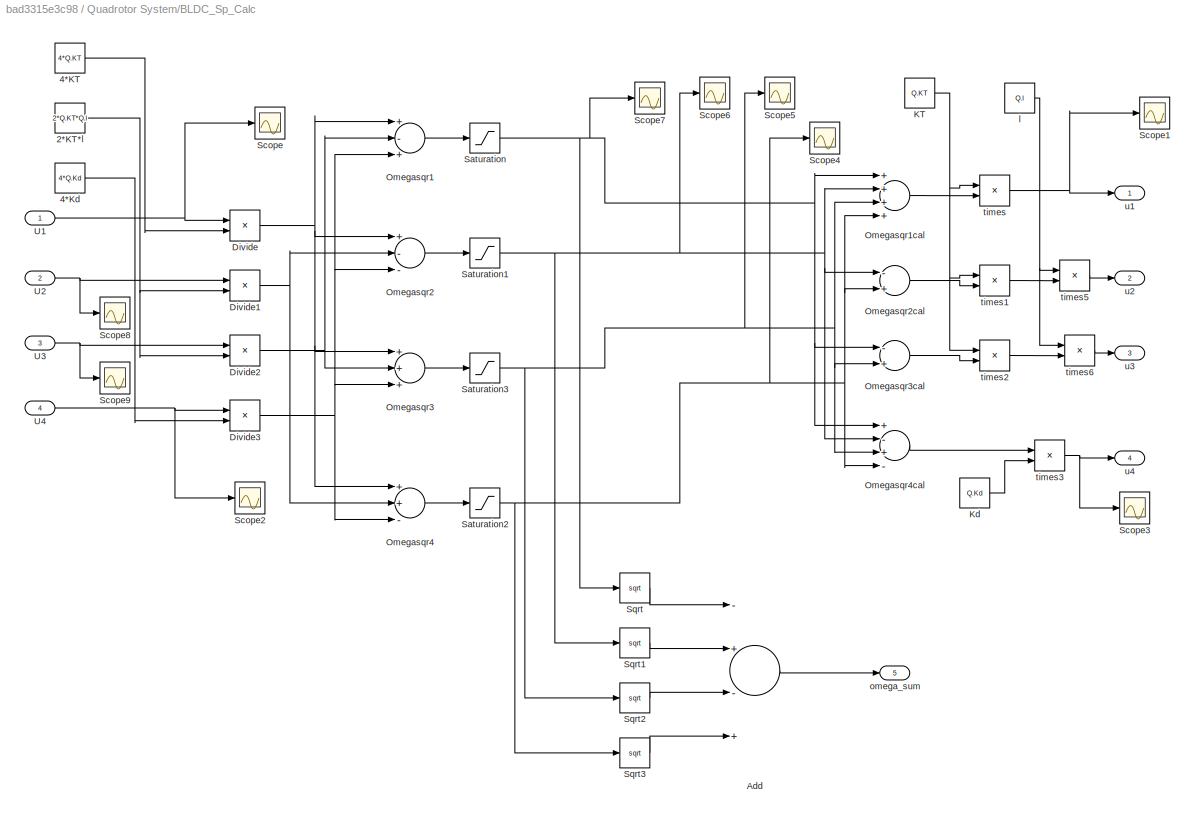
BLOCK [SubSystem] Quadrotor System/BLDC_Sp_Calc
  Ports = [4, 5]
  RequestExecContextInheritance = off
BLOCK [Constant] Quadrotor System/BLDC_Sp_Calc/2*KT*l
  Value = 2*Q.KT*Q.l
BLOCK [Constant] Quadrotor System/BLDC_Sp_Calc/4*KT
  Value = 4*Q.KT
BLOCK [Constant] Quadrotor System/BLDC_Sp_Calc/4*Kd
  Value = 4*Q.Kd
BLOCK [Sum] Quadrotor System/BLDC_Sp_Calc/Add
  InputSameDT = off
  Inputs = -+-+
  OutDataTypeStr = Inherit: Inherit via internal rule
  Ports = [4, 1]
  SaturateOnIntegerOverflow = off
BLOCK [Product] Quadrotor System/BLDC_Sp_Calc/Divide
  InputSameDT = off
  Inputs = */
  OutDataTypeStr = Inherit: Inherit via internal rule
  Ports = [2, 1]
  RndMeth = Floor
  SaturateOnIntegerOverflow = off
BLOCK [Product] Quadrotor System/BLDC_Sp_Calc/Divide1
  InputSameDT = off
  Inputs = */
  OutDataTypeStr = Inherit: Inherit via internal rule
  Ports = [2, 1]
  RndMeth = Floor
  SaturateOnIntegerOverflow = off
BLOCK [Product] Quadrotor System/BLDC_Sp_Calc/Divide2
  InputSameDT = off
  Inputs = */
  OutDataTypeStr = Inherit: Inherit via internal rule
  Ports = [2, 1]
  RndMeth = Floor
  SaturateOnIntegerOverflow = off
BLOCK [Product] Quadrotor System/BLDC_Sp_Calc/Divide3
  InputSameDT = off
  Inputs = */
  OutDataTypeStr = Inherit: Inherit via internal rule
  Ports = [2, 1]
  RndMeth = Floor
  SaturateOnIntegerOverflow = off
BLOCK [Constant] Quadrotor System/BLDC_Sp_Calc/KT
  Value = Q.KT
BLOCK [Constant] Quadrotor System/BLDC_Sp_Calc/Kd
  Value = Q.Kd
BLOCK [Sum] Quadrotor System/BLDC_Sp_Calc/Omegasqr1
  InputSameDT = off
  Inputs = +-+
  OutDataTypeStr = Inherit: Inherit via internal rule
  Ports = [3, 1]
  SaturateOnIntegerOverflow = off
BLOCK [Sum] Quadrotor System/BLDC_Sp_Calc/Omegasqr1cal
  InputSameDT = off
  Inputs = ++++
  OutDataTypeStr = Inherit: Inherit via internal rule
  Ports = [4, 1]
  SaturateOnIntegerOverflow = off
BLOCK [Sum] Quadrotor System/BLDC_Sp_Calc/Omegasqr2
  InputSameDT = off
  Inputs = +--
  OutDataTypeStr = Inherit: Inherit via internal rule
  Ports = [3, 1]
  SaturateOnIntegerOverflow = off
BLOCK [Sum] Quadrotor System/BLDC_Sp_Calc/Omegasqr2cal
  InputSameDT = off
  Inputs = -+
  OutDataTypeStr = Inherit: Inherit via internal rule
  Ports = [2, 1]
  SaturateOnIntegerOverflow = off
BLOCK [Sum] Quadrotor System/BLDC_Sp_Calc/Omegasqr3
  InputSameDT = off
  Inputs = +++
  OutDataTypeStr = Inherit: Inherit via internal rule
  Ports = [3, 1]
  SaturateOnIntegerOverflow = off
BLOCK [Sum] Quadrotor System/BLDC_Sp_Calc/Omegasqr3cal
  InputSameDT = off
  Inputs = -+
  OutDataTypeStr = Inherit: Inherit via internal rule
  Ports = [2, 1]
  SaturateOnIntegerOverflow = off
BLOCK [Sum] Quadrotor System/BLDC_Sp_Calc/Omegasqr4
  InputSameDT = off
  Inputs = ++-
  OutDataTypeStr = Inherit: Inherit via internal rule
  Ports = [3, 1]
  SaturateOnIntegerOverflow = off
BLOCK [Sum] Quadrotor System/BLDC_Sp_Calc/Omegasqr4cal
  InputSameDT = off
  Inputs = +-+-
  OutDataTypeStr = Inherit: Inherit via internal rule
  Ports = [4, 1]
  SaturateOnIntegerOverflow = off
BLOCK [Saturate] Quadrotor System/BLDC_Sp_Calc/Saturation
  InputPortMap = u0
  LowerLimit = Q.min_motor_speed^2
  Ports = [1, 1]
  UpperLimit = Q.max_motor_speed^2
  ZeroCross = off
BLOCK [Saturate] Quadrotor System/BLDC_Sp_Calc/Saturation1
  InputPortMap = u0
  LowerLimit = Q.min_motor_speed^2
  Ports = [1, 1]
  UpperLimit = Q.max_motor_speed^2
  ZeroCross = off
BLOCK [Saturate] Quadrotor System/BLDC_Sp_Calc/Saturation2
  InputPortMap = u0
  LowerLimit = Q.min_motor_speed^2
  Ports = [1, 1]
  UpperLimit = Q.max_motor_speed^2
  ZeroCross = off
BLOCK [Saturate] Quadrotor System/BLDC_Sp_Calc/Saturation3
  InputPortMap = u0
  LowerLimit = Q.min_motor_speed^2
  Ports = [1, 1]
  UpperLimit = Q.max_motor_speed^2
  ZeroCross = off
BLOCK [Scope] Quadrotor System/BLDC_Sp_Calc/Scope
  Floating = off
  NumInputPorts = 1
  Ports = [1]
  ScopeSpecificationString = C++SS(StrPVP('Location','[188, 390, 512, 629]'),StrPVP('Open','off'),MxPVP('AxesTitles',53,'struct(''axes1'',''%<SignalLabel>'')'),StrPVP('SaveName','ScopeData2'),StrPVP('DataFormat','StructureWithTime'),StrPVP('BlockParamSampleTime','0'),StrPVP('LimitDataPoints','on'),StrPVP('Decimation','1'),StrPVP('BlockParamSampleInput','off'))
BLOCK [Scope] Quadrotor System/BLDC_Sp_Calc/Scope1
  Floating = off
  NumInputPorts = 1
  Ports = [1]
  ScopeSpecificationString = C++SS(StrPVP('Location','[583, 385, 907, 624]'),StrPVP('Open','off'),MxPVP('AxesTitles',53,'struct(''axes1'',''%<SignalLabel>'')'),StrPVP('SaveName','ScopeData3'),StrPVP('DataFormat','StructureWithTime'),StrPVP('BlockParamSampleTime','0'),StrPVP('LimitDataPoints','on'),StrPVP('Decimation','1'),StrPVP('BlockParamSampleInput','off'))
BLOCK [Scope] Quadrotor System/BLDC_Sp_Calc/Scope2
  Floating = off
  NumInputPorts = 1
  Ports = [1]
  ScopeSpecificationString = C++SS(StrPVP('Location','[188, 390, 512, 629]'),StrPVP('Open','off'),MxPVP('AxesTitles',53,'struct(''axes1'',''%<SignalLabel>'')'),StrPVP('SaveName','ScopeData4'),StrPVP('DataFormat','StructureWithTime'),StrPVP('BlockParamSampleTime','0'),StrPVP('LimitDataPoints','on'),StrPVP('Decimation','1'),StrPVP('BlockParamSampleInput','off'))
BLOCK [Scope] Quadrotor System/BLDC_Sp_Calc/Scope3
  Floating = off
  NumInputPorts = 1
  Ports = [1]
  ScopeSpecificationString = C++SS(StrPVP('Location','[531, 393, 855, 632]'),StrPVP('Open','off'),MxPVP('AxesTitles',53,'struct(''axes1'',''%<SignalLabel>'')'),StrPVP('SaveName','ScopeData5'),StrPVP('DataFormat','StructureWithTime'),StrPVP('BlockParamSampleTime','0'),StrPVP('LimitDataPoints','on'),StrPVP('Decimation','1'),StrPVP('BlockParamSampleInput','off'))
BLOCK [Scope] Quadrotor System/BLDC_Sp_Calc/Scope4
  Floating = off
  NumInputPorts = 1
  Ports = [1]
  ScopeSpecificationString = C++SS(StrPVP('Location','[188, 390, 512, 629]'),StrPVP('Open','off'),MxPVP('AxesTitles',53,'struct(''axes1'',''%<SignalLabel>'')'),StrPVP('SaveName','ScopeData6'),StrPVP('DataFormat','StructureWithTime'),StrPVP('BlockParamSampleTime','0'),StrPVP('LimitDataPoints','on'),StrPVP('Decimation','1'),StrPVP('BlockParamSampleInput','off'))
BLOCK [Scope] Quadrotor System/BLDC_Sp_Calc/Scope5
  Floating = off
  NumInputPorts = 1
  Ports = [1]
  ScopeSpecificationString = C++SS(StrPVP('Location','[188, 390, 512, 629]'),StrPVP('Open','off'),MxPVP('AxesTitles',53,'struct(''axes1'',''%<SignalLabel>'')'),StrPVP('SaveName','ScopeData7'),StrPVP('DataFormat','StructureWithTime'),StrPVP('BlockParamSampleTime','0'),StrPVP('LimitDataPoints','on'),StrPVP('Decimation','1'),StrPVP('BlockParamSampleInput','off'))
BLOCK [Scope] Quadrotor System/BLDC_Sp_Calc/Scope6
  Floating = off
  NumInputPorts = 1
  Ports = [1]
  ScopeSpecificationString = C++SS(StrPVP('Location','[188, 390, 512, 629]'),StrPVP('Open','off'),MxPVP('AxesTitles',53,'struct(''axes1'',''%<SignalLabel>'')'),StrPVP('SaveName','ScopeData8'),StrPVP('DataFormat','StructureWithTime'),StrPVP('BlockParamSampleTime','0'),StrPVP('LimitDataPoints','on'),StrPVP('Decimation','1'),StrPVP('BlockParamSampleInput','off'))
BLOCK [Scope] Quadrotor System/BLDC_Sp_Calc/Scope7
  Floating = off
  NumInputPorts = 1
  Ports = [1]
  ScopeSpecificationString = C++SS(StrPVP('Location','[188, 390, 512, 629]'),StrPVP('Open','off'),MxPVP('AxesTitles',53,'struct(''axes1'',''%<SignalLabel>'')'),StrPVP('SaveName','ScopeData9'),StrPVP('DataFormat','StructureWithTime'),StrPVP('BlockParamSampleTime','0'),StrPVP('LimitDataPoints','on'),StrPVP('Decimation','1'),StrPVP('BlockParamSampleInput','off'))
BLOCK [Scope] Quadrotor System/BLDC_Sp_Calc/Scope8
  Floating = off
  NumInputPorts = 1
  Ports = [1]
  ScopeSpecificationString = C++SS(StrPVP('Location','[188, 390, 512, 629]'),StrPVP('Open','off'),MxPVP('AxesTitles',53,'struct(''axes1'',''%<SignalLabel>'')'),StrPVP('DataFormat','StructureWithTime'),StrPVP('BlockParamSampleTime','0'),StrPVP('LimitDataPoints','on'),StrPVP('Decimation','1'),StrPVP('BlockParamSampleInput','off'))
BLOCK [Scope] Quadrotor System/BLDC_Sp_Calc/Scope9
  Floating = off
  NumInputPorts = 1
  Ports = [1]
  ScopeSpecificationString = C++SS(StrPVP('Location','[188, 390, 512, 629]'),StrPVP('Open','off'),MxPVP('AxesTitles',53,'struct(''axes1'',''%<SignalLabel>'')'),StrPVP('SaveName','ScopeData1'),StrPVP('DataFormat','StructureWithTime'),StrPVP('BlockParamSampleTime','0'),StrPVP('LimitDataPoints','on'),StrPVP('Decimation','1'),StrPVP('BlockParamSampleInput','off'))
BLOCK [Sqrt] Quadrotor System/BLDC_Sp_Calc/Sqrt
BLOCK [Sqrt] Quadrotor System/BLDC_Sp_Calc/Sqrt1
BLOCK [Sqrt] Quadrotor System/BLDC_Sp_Calc/Sqrt2
BLOCK [Sqrt] Quadrotor System/BLDC_Sp_Calc/Sqrt3
BLOCK [Inport] Quadrotor System/BLDC_Sp_Calc/U1
  IconDisplay = Port number
BLOCK [Inport] Quadrotor System/BLDC_Sp_Calc/U2
  IconDisplay = Port number
  Port = 2
BLOCK [Inport] Quadrotor System/BLDC_Sp_Calc/U3
  IconDisplay = Port number
  Port = 3
BLOCK [Inport] Quadrotor System/BLDC_Sp_Calc/U4
  IconDisplay = Port number
  Port = 4
BLOCK [Constant] Quadrotor System/BLDC_Sp_Calc/l
  Value = Q.l
BLOCK [Outport] Quadrotor System/BLDC_Sp_Calc/omega_sum
  IconDisplay = Port number
  Port = 5
BLOCK [Product] Quadrotor System/BLDC_Sp_Calc/times
  InputSameDT = off
  Inputs = **
  OutDataTypeStr = Inherit: Inherit via internal rule
  Ports = [2, 1]
  RndMeth = Floor
  SaturateOnIntegerOverflow = off
BLOCK [Product] Quadrotor System/BLDC_Sp_Calc/times1
  InputSameDT = off
  Inputs = **
  OutDataTypeStr = Inherit: Inherit via internal rule
  Ports = [2, 1]
  RndMeth = Floor
  SaturateOnIntegerOverflow = off
BLOCK [Product] Quadrotor System/BLDC_Sp_Calc/times2
  InputSameDT = off
  Inputs = **
  OutDataTypeStr = Inherit: Inherit via internal rule
  Ports = [2, 1]
  RndMeth = Floor
  SaturateOnIntegerOverflow = off
BLOCK [Product] Quadrotor System/BLDC_Sp_Calc/times3
  InputSameDT = off
  Inputs = **
  OutDataTypeStr = Inherit: Inherit via internal rule
  Ports = [2, 1]
  RndMeth = Floor
  SaturateOnIntegerOverflow = off
BLOCK [Product] Quadrotor System/BLDC_Sp_Calc/times5
  InputSameDT = off
  Inputs = **
  OutDataTypeStr = Inherit: Inherit via internal rule
  Ports = [2, 1]
  RndMeth = Floor
  SaturateOnIntegerOverflow = off
BLOCK [Product] Quadrotor System/BLDC_Sp_Calc/times6
  InputSameDT = off
  Inputs = **
  OutDataTypeStr = Inherit: Inherit via internal rule
  Ports = [2, 1]
  RndMeth = Floor
  SaturateOnIntegerOverflow = off
BLOCK [Outport] Quadrotor System/BLDC_Sp_Calc/u1
  IconDisplay = Port number
BLOCK [Outport] Quadrotor System/BLDC_Sp_Calc/u2
  IconDisplay = Port number
  Port = 2
BLOCK [Outport] Quadrotor System/BLDC_Sp_Calc/u3
  IconDisplay = Port number
  Port = 3
BLOCK [Outport] Quadrotor System/BLDC_Sp_Calc/u4
  IconDisplay = Port number
  Port = 4
BLOCK [Outport] Quadrotor System/Phi
  IconDisplay = Port number
  Port = 2
BLOCK [Outport] Quadrotor System/Psi
  IconDisplay = Port number
  Port = 4
BLOCK [SubSystem] Quadrotor System/Rotational Equations
  Ports = [7, 3]
  RequestExecContextInheritance = off
BLOCK [Constant] Quadrotor System/Rotational Equations/(Jx-Jy)//Jz
  Value = (Q.Jx - Q.Jy)/Q.Jz
BLOCK [Constant] Quadrotor System/Rotational Equations/(Jy-Jz)//Jx
  Value = (Q.Jy - Q.Jz)/Q.Jx
BLOCK [Constant] Quadrotor System/Rotational Equations/(Jz-Jx)//Jy
  Value = (Q.Jz - Q.Jx)/Q.Jy
BLOCK [Constant] Quadrotor System/Rotational Equations/1//Jz
  Value = 1/Q.Jz
BLOCK [Sum] Quadrotor System/Rotational Equations/Add
  InputSameDT = off
  Inputs = +-+
  OutDataTypeStr = Inherit: Inherit via internal rule
  Ports = [3, 1]
  SaturateOnIntegerOverflow = off
BLOCK [Sum] Quadrotor System/Rotational Equations/Add1
  InputSameDT = off
  Inputs = +++
  OutDataTypeStr = Inherit: Inherit via internal rule
  Ports = [3, 1]
  SaturateOnIntegerOverflow = off
BLOCK [Sum] Quadrotor System/Rotational Equations/Add2
  InputSameDT = off
  OutDataTypeStr = Inherit: Inherit via internal rule
  Ports = [2, 1]
  SaturateOnIntegerOverflow = off
BLOCK [Constant] Quadrotor System/Rotational Equations/Jp//Jx
  Value = Q.Jr/Q.Jx
BLOCK [Constant] Quadrotor System/Rotational Equations/Jp//Jy
  Value = Q.Jr/Q.Jy
BLOCK [Inport] Quadrotor System/Rotational Equations/Omega_sum
  IconDisplay = Port number
  Port = 7
BLOCK [Product] Quadrotor System/Rotational Equations/Product of Elements
  InputSameDT = off
  Inputs = 3
  OutDataTypeStr = Inherit: Inherit via internal rule
  Ports = [3, 1]
  RndMeth = Floor
  SaturateOnIntegerOverflow = off
BLOCK [Product] Quadrotor System/Rotational Equations/Product of Elements1
  InputSameDT = off
  Inputs = 3
  OutDataTypeStr = Inherit: Inherit via internal rule
  Ports = [3, 1]
  RndMeth = Floor
  SaturateOnIntegerOverflow = off
BLOCK [Product] Quadrotor System/Rotational Equations/Product of Elements2
  InputSameDT = off
  OutDataTypeStr = Inherit: Inherit via internal rule
  Ports = [2, 1]
  RndMeth = Floor
  SaturateOnIntegerOverflow = off
BLOCK [Product] Quadrotor System/Rotational Equations/Product of Elements3
  InputSameDT = off
  Inputs = 3
  OutDataTypeStr = Inherit: Inherit via internal rule
  Ports = [3, 1]
  RndMeth = Floor
  SaturateOnIntegerOverflow = off
BLOCK [Product] Quadrotor System/Rotational Equations/Product of Elements4
  InputSameDT = off
  Inputs = 3
  OutDataTypeStr = Inherit: Inherit via internal rule
  Ports = [3, 1]
  RndMeth = Floor
  SaturateOnIntegerOverflow = off
BLOCK [Product] Quadrotor System/Rotational Equations/Product of Elements5
  InputSameDT = off
  OutDataTypeStr = Inherit: Inherit via internal rule
  Ports = [2, 1]
  RndMeth = Floor
  SaturateOnIntegerOverflow = off
BLOCK [Product] Quadrotor System/Rotational Equations/Product of Elements6
  InputSameDT = off
  Inputs = 3
  OutDataTypeStr = Inherit: Inherit via internal rule
  Ports = [3, 1]
  RndMeth = Floor
  SaturateOnIntegerOverflow = off
BLOCK [Product] Quadrotor System/Rotational Equations/Product of Elements7
  InputSameDT = off
  OutDataTypeStr = Inherit: Inherit via internal rule
  Ports = [2, 1]
  RndMeth = Floor
  SaturateOnIntegerOverflow = off
BLOCK [Inport] Quadrotor System/Rotational Equations/U2
  IconDisplay = Port number
  Port = 4
BLOCK [Inport] Quadrotor System/Rotational Equations/U3
  IconDisplay = Port number
  Port = 5
BLOCK [Inport] Quadrotor System/Rotational Equations/U4
  IconDisplay = Port number
  Port = 6
BLOCK [Constant] Quadrotor System/Rotational Equations/l//Jx
  Value = Q.l/Q.Jx
BLOCK [Constant] Quadrotor System/Rotational Equations/l//Jy
  Value = Q.l/Q.Jy
BLOCK [Inport] Quadrotor System/Rotational Equations/p
  IconDisplay = Port number
BLOCK [Outport] Quadrotor System/Rotational Equations/phi_dotdot
  IconDisplay = Port number
BLOCK [Outport] Quadrotor System/Rotational Equations/psi_dotdot
  IconDisplay = Port number
  Port = 3
BLOCK [Inport] Quadrotor System/Rotational Equations/q
  IconDisplay = Port number
  Port = 2
BLOCK [Inport] Quadrotor System/Rotational Equations/r
  IconDisplay = Port number
  Port = 3
BLOCK [Outport] Quadrotor System/Rotational Equations/theta_dotdot
  IconDisplay = Port number
  Port = 2
BLOCK [Outport] Quadrotor System/Theta
  IconDisplay = Port number
  Port = 3
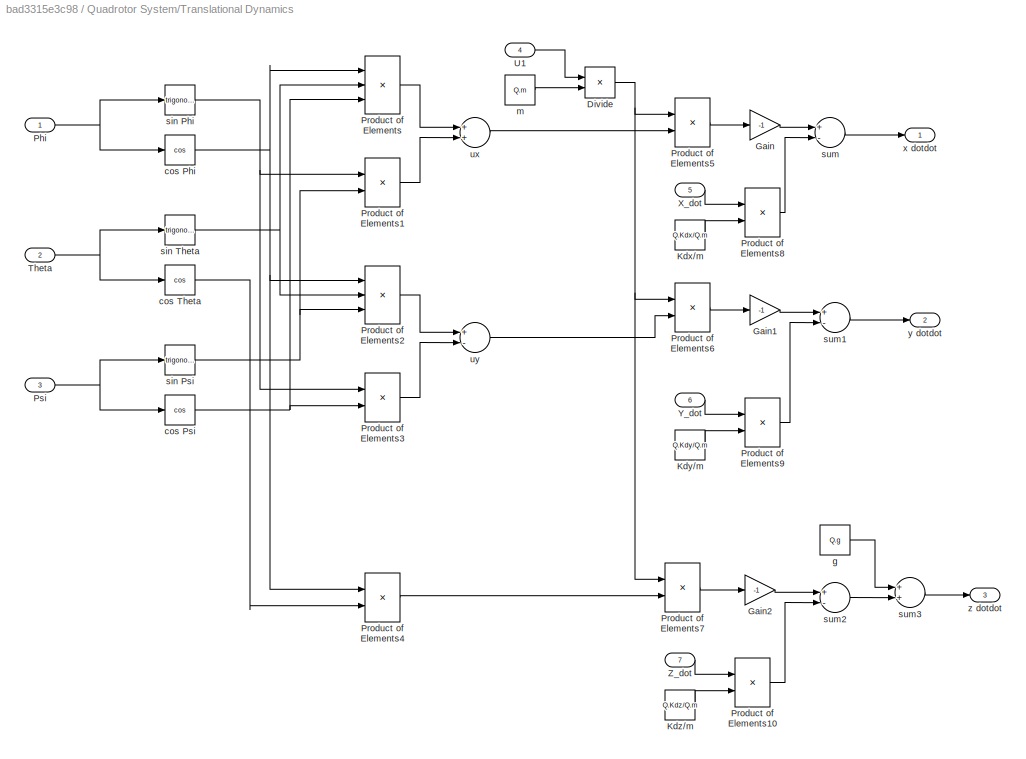
BLOCK [SubSystem] Quadrotor System/Translational Dynamics
  Ports = [7, 3]
  RequestExecContextInheritance = off
BLOCK [Product] Quadrotor System/Translational Dynamics/Divide
  InputSameDT = off
  Inputs = */
  OutDataTypeStr = Inherit: Inherit via internal rule
  Ports = [2, 1]
  RndMeth = Floor
  SaturateOnIntegerOverflow = off
BLOCK [Gain] Quadrotor System/Translational Dynamics/Gain
  Gain = -1
  OutDataTypeStr = Inherit: Inherit via internal rule
  ParamDataTypeStr = Inherit: Inherit via internal rule
  SaturateOnIntegerOverflow = off
BLOCK [Gain] Quadrotor System/Translational Dynamics/Gain1
  Gain = -1
  OutDataTypeStr = Inherit: Inherit via internal rule
  ParamDataTypeStr = Inherit: Inherit via internal rule
  SaturateOnIntegerOverflow = off
BLOCK [Gain] Quadrotor System/Translational Dynamics/Gain2
  Gain = -1
  OutDataTypeStr = Inherit: Inherit via internal rule
  ParamDataTypeStr = Inherit: Inherit via internal rule
  SaturateOnIntegerOverflow = off
BLOCK [Constant] Quadrotor System/Translational Dynamics/Kdx//m
  Value = Q.Kdx/Q.m
BLOCK [Constant] Quadrotor System/Translational Dynamics/Kdy//m
  Value = Q.Kdy/Q.m
BLOCK [Constant] Quadrotor System/Translational Dynamics/Kdz//m
  Value = Q.Kdz/Q.m
BLOCK [Inport] Quadrotor System/Translational Dynamics/Phi
  IconDisplay = Port number
BLOCK [Product] Quadrotor System/Translational Dynamics/Product of Elements
  InputSameDT = off
  Inputs = 3
  OutDataTypeStr = Inherit: Inherit via internal rule
  Ports = [3, 1]
  RndMeth = Floor
  SaturateOnIntegerOverflow = off
BLOCK [Product] Quadrotor System/Translational Dynamics/Product of Elements1
  InputSameDT = off
  OutDataTypeStr = Inherit: Inherit via internal rule
  Ports = [2, 1]
  RndMeth = Floor
  SaturateOnIntegerOverflow = off
BLOCK [Product] Quadrotor System/Translational Dynamics/Product of Elements10
  InputSameDT = off
  OutDataTypeStr = Inherit: Inherit via internal rule
  Ports = [2, 1]
  RndMeth = Floor
  SaturateOnIntegerOverflow = off
BLOCK [Product] Quadrotor System/Translational Dynamics/Product of Elements2
  InputSameDT = off
  Inputs = 3
  OutDataTypeStr = Inherit: Inherit via internal rule
  Ports = [3, 1]
  RndMeth = Floor
  SaturateOnIntegerOverflow = off
BLOCK [Product] Quadrotor System/Translational Dynamics/Product of Elements3
  InputSameDT = off
  OutDataTypeStr = Inherit: Inherit via internal rule
  Ports = [2, 1]
  RndMeth = Floor
  SaturateOnIntegerOverflow = off
BLOCK [Product] Quadrotor System/Translational Dynamics/Product of Elements4
  InputSameDT = off
  OutDataTypeStr = Inherit: Inherit via internal rule
  Ports = [2, 1]
  RndMeth = Floor
  SaturateOnIntegerOverflow = off
BLOCK [Product] Quadrotor System/Translational Dynamics/Product of Elements5
  InputSameDT = off
  OutDataTypeStr = Inherit: Inherit via internal rule
  Ports = [2, 1]
  RndMeth = Floor
  SaturateOnIntegerOverflow = off
BLOCK [Product] Quadrotor System/Translational Dynamics/Product of Elements6
  InputSameDT = off
  OutDataTypeStr = Inherit: Inherit via internal rule
  Ports = [2, 1]
  RndMeth = Floor
  SaturateOnIntegerOverflow = off
BLOCK [Product] Quadrotor System/Translational Dynamics/Product of Elements7
  InputSameDT = off
  OutDataTypeStr = Inherit: Inherit via internal rule
  Ports = [2, 1]
  RndMeth = Floor
  SaturateOnIntegerOverflow = off
BLOCK [Product] Quadrotor System/Translational Dynamics/Product of Elements8
  InputSameDT = off
  OutDataTypeStr = Inherit: Inherit via internal rule
  Ports = [2, 1]
  RndMeth = Floor
  SaturateOnIntegerOverflow = off
BLOCK [Product] Quadrotor System/Translational Dynamics/Product of Elements9
  InputSameDT = off
  OutDataTypeStr = Inherit: Inherit via internal rule
  Ports = [2, 1]
  RndMeth = Floor
  SaturateOnIntegerOverflow = off
BLOCK [Inport] Quadrotor System/Translational Dynamics/Psi
  IconDisplay = Port number
  Port = 3
BLOCK [Inport] Quadrotor System/Translational Dynamics/Theta
  IconDisplay = Port number
  Port = 2
BLOCK [Inport] Quadrotor System/Translational Dynamics/U1
  IconDisplay = Port number
  Port = 4
BLOCK [Inport] Quadrotor System/Translational Dynamics/X_dot
  IconDisplay = Port number
  Port = 5
BLOCK [Inport] Quadrotor System/Translational Dynamics/Y_dot
  IconDisplay = Port number
  Port = 6
BLOCK [Inport] Quadrotor System/Translational Dynamics/Z_dot
  IconDisplay = Port number
  Port = 7
BLOCK [Trigonometry] Quadrotor System/Translational Dynamics/cos Phi
  Operator = cos
  Ports = [1, 1]
BLOCK [Trigonometry] Quadrotor System/Translational Dynamics/cos Psi
  Operator = cos
  Ports = [1, 1]
BLOCK [Trigonometry] Quadrotor System/Translational Dynamics/cos Theta
  Operator = cos
  Ports = [1, 1]
BLOCK [Constant] Quadrotor System/Translational Dynamics/g
  Value = Q.g
BLOCK [Constant] Quadrotor System/Translational Dynamics/m
  Value = Q.m
BLOCK [Trigonometry] Quadrotor System/Translational Dynamics/sin Phi
  Ports = [1, 1]
BLOCK [Trigonometry] Quadrotor System/Translational Dynamics/sin Psi
  Ports = [1, 1]
BLOCK [Trigonometry] Quadrotor System/Translational Dynamics/sin Theta
  Ports = [1, 1]
BLOCK [Sum] Quadrotor System/Translational Dynamics/sum
  InputSameDT = off
  Inputs = +-
  OutDataTypeStr = Inherit: Inherit via internal rule
  Ports = [2, 1]
  SaturateOnIntegerOverflow = off
BLOCK [Sum] Quadrotor System/Translational Dynamics/sum1
  InputSameDT = off
  Inputs = +-
  OutDataTypeStr = Inherit: Inherit via internal rule
  Ports = [2, 1]
  SaturateOnIntegerOverflow = off
BLOCK [Sum] Quadrotor System/Translational Dynamics/sum2
  InputSameDT = off
  Inputs = +-
  OutDataTypeStr = Inherit: Inherit via internal rule
  Ports = [2, 1]
  SaturateOnIntegerOverflow = off
BLOCK [Sum] Quadrotor System/Translational Dynamics/sum3
  InputSameDT = off
  OutDataTypeStr = Inherit: Inherit via internal rule
  Ports = [2, 1]
  SaturateOnIntegerOverflow = off
BLOCK [Sum] Quadrotor System/Translational Dynamics/ux
  InputSameDT = off
  OutDataTypeStr = Inherit: Inherit via internal rule
  Ports = [2, 1]
  SaturateOnIntegerOverflow = off
BLOCK [Sum] Quadrotor System/Translational Dynamics/uy
  InputSameDT = off
  Inputs = +-
  OutDataTypeStr = Inherit: Inherit via internal rule
  Ports = [2, 1]
  SaturateOnIntegerOverflow = off
BLOCK [Outport] Quadrotor System/Translational Dynamics/x dotdot
  IconDisplay = Port number
BLOCK [Outport] Quadrotor System/Translational Dynamics/y dotdot
  IconDisplay = Port number
  Port = 2
BLOCK [Outport] Quadrotor System/Translational Dynamics/z dotdot
  IconDisplay = Port number
  Port = 3
BLOCK [Inport] Quadrotor System/U1
  IconDisplay = Port number
BLOCK [Inport] Quadrotor System/U2
  IconDisplay = Port number
  Port = 2
BLOCK [Inport] Quadrotor System/U3
  IconDisplay = Port number
  Port = 3
BLOCK [Inport] Quadrotor System/U4
  IconDisplay = Port number
  Port = 4
BLOCK [Outport] Quadrotor System/X
  IconDisplay = Port number
  Port = 5
BLOCK [Integrator] Quadrotor System/X_GF
  Ports = [1, 1]
BLOCK [Integrator] Quadrotor System/X_dot
  Ports = [1, 1]
BLOCK [Outport] Quadrotor System/Y
  IconDisplay = Port number
  Port = 6
BLOCK [Integrator] Quadrotor System/Y_GF
  Ports = [1, 1]
BLOCK [Integrator] Quadrotor System/Y_dot
  Ports = [1, 1]
BLOCK [Outport] Quadrotor System/Z
  IconDisplay = Port number
BLOCK [Integrator] Quadrotor System/Z_GF
  Ports = [1, 1]
BLOCK [Integrator] Quadrotor System/Z_dot
  Ports = [1, 1]
BLOCK [Outport] Quadrotor System/p
  IconDisplay = Port number
  Port = 7
BLOCK [Integrator] Quadrotor System/phi
  Ports = [1, 1]
  ZeroCross = off
BLOCK [Integrator] Quadrotor System/phi_dot
  Ports = [1, 1]
BLOCK [Integrator] Quadrotor System/psi
  Ports = [1, 1]
  ZeroCross = off
BLOCK [Integrator] Quadrotor System/psi_dot
  Ports = [1, 1]
  ZeroCross = off
BLOCK [Outport] Quadrotor System/q
  IconDisplay = Port number
  Port = 8
BLOCK [Outport] Quadrotor System/r
  IconDisplay = Port number
  Port = 9
BLOCK [Integrator] Quadrotor System/theta
  Ports = [1, 1]
  ZeroCross = off
BLOCK [Integrator] Quadrotor System/theta_dot
  Ports = [1, 1]
  ZeroCross = off
BLOCK [Outport] Theta
  IconDisplay = Port number
  Port = 5
BLOCK [Outport] X
  IconDisplay = Port number
BLOCK [Inport] Xd
  IconDisplay = Port number
BLOCK [Outport] Y
  IconDisplay = Port number
  Port = 2
BLOCK [Inport] Yd
  IconDisplay = Port number
  Port = 2
BLOCK [Outport] Z
  IconDisplay = Port number
  Port = 3
BLOCK [Inport] Zd
  IconDisplay = Port number
  Port = 3
BLOCK [Scope] p_Out
  Floating = off
  NumInputPorts = 1
  Ports = [1]
  ScopeSpecificationString = Simulink.scopes.TimeScopeBlockCfg('CurrentConfiguration', extmgr.ConfigurationSet(extmgr.Configuration('Core','General UI',true),extmgr.Configuration('Core','Source UI',true),extmgr.Configuration('Sources','WiredSimulink',true,'DataLoggingVariableName','ScopeData20'),extmgr.Configuration('Visuals','Time Domain',true,'SerializedDisplays',{struct('MinYLimReal','-0.39688','MaxYLimReal','0.28925','YLa...<+1378ch>
BLOCK [Scope] q_Out
  Floating = off
  NumInputPorts = 1
  Ports = [1]
  ScopeSpecificationString = Simulink.scopes.TimeScopeBlockCfg('CurrentConfiguration', extmgr.ConfigurationSet(extmgr.Configuration('Core','General UI',true),extmgr.Configuration('Core','Source UI',true),extmgr.Configuration('Sources','WiredSimulink',true,'DataLoggingVariableName','ScopeData21'),extmgr.Configuration('Visuals','Time Domain',true,'SerializedDisplays',{struct('MinYLimReal','-0.64963','MaxYLimReal','0.25089','YLa...<+1378ch>
BLOCK [Scope] r_Out
  Floating = off
  NumInputPorts = 1
  Ports = [1]
  ScopeSpecificationString = Simulink.scopes.TimeScopeBlockCfg('CurrentConfiguration', extmgr.ConfigurationSet(extmgr.Configuration('Core','General UI',true),extmgr.Configuration('Core','Source UI',true),extmgr.Configuration('Sources','WiredSimulink',true,'DataLoggingVariableName','ScopeData22'),extmgr.Configuration('Visuals','Time Domain',true,'SerializedDisplays',{struct('MinYLimReal','-0.09593','MaxYLimReal','0.06332','YLa...<+1378ch>
ANNOTATION Position Control/Desired Positions from GF -> BF: -Xsin(psi)
ANNOTATION Position Control/Desired Positions from GF -> BF: Xcos(psi)
ANNOTATION Position Control/Desired Positions from GF -> BF: Ycos(psi)
ANNOTATION Position Control/Desired Positions from GF -> BF: Ysin(psi)
LINE Angular Rate PID Controller/p PID/Derivative:1 -> Angular Rate PID Controller/p PID/Kd:1
LINE Angular Rate PID Controller/p PID/Integrator:1 -> Angular Rate PID Controller/p PID/Ki:1
LINE Angular Rate PID Controller/p PID/Kd:1 -> Angular Rate PID Controller/p PID/Sum:3
LINE Angular Rate PID Controller/p PID/Ki:1 -> Angular Rate PID Controller/p PID/Saturation1:1
LINE Angular Rate PID Controller/p PID/Kp:1 -> Angular Rate PID Controller/p PID/Sum:1
LINE Angular Rate PID Controller/p PID/Saturation1:1 -> Angular Rate PID Controller/p PID/Sum:2
LINE Angular Rate PID Controller/p PID/Saturation2:1 -> Angular Rate PID Controller/p PID/U2:1
LINE Angular Rate PID Controller/p PID/Sum:1 -> Angular Rate PID Controller/p PID/Saturation2:1
NET Angular Rate PID Controller/p PID/p Error:1 -> Angular Rate PID Controller/p PID/Integrator:1, Angular Rate PID Controller/p PID/Kp:1
LINE Angular Rate PID Controller/p PID/p desired:1 -> Angular Rate PID Controller/p PID/p Error:1
NET Angular Rate PID Controller/p PID/p:1 -> Angular Rate PID Controller/p PID/Derivative:1, Angular Rate PID Controller/p PID/p Error:2
LINE Angular Rate PID Controller/p PID:1 -> Angular Rate PID Controller/U2:1
LINE Angular Rate PID Controller/p desired:1 -> Angular Rate PID Controller/p PID:2
LINE Angular Rate PID Controller/p:1 -> Angular Rate PID Controller/p PID:1
LINE Angular Rate PID Controller/q PID/Derivative:1 -> Angular Rate PID Controller/q PID/Kd:1
LINE Angular Rate PID Controller/q PID/Integrator:1 -> Angular Rate PID Controller/q PID/Ki:1
LINE Angular Rate PID Controller/q PID/Kd:1 -> Angular Rate PID Controller/q PID/Sum:3
LINE Angular Rate PID Controller/q PID/Ki:1 -> Angular Rate PID Controller/q PID/Saturation1:1
LINE Angular Rate PID Controller/q PID/Kp:1 -> Angular Rate PID Controller/q PID/Sum:1
LINE Angular Rate PID Controller/q PID/Saturation1:1 -> Angular Rate PID Controller/q PID/Sum:2
LINE Angular Rate PID Controller/q PID/Saturation2:1 -> Angular Rate PID Controller/q PID/U3:1
LINE Angular Rate PID Controller/q PID/Sum:1 -> Angular Rate PID Controller/q PID/Saturation2:1
NET Angular Rate PID Controller/q PID/q Error:1 -> Angular Rate PID Controller/q PID/Integrator:1, Angular Rate PID Controller/q PID/Kp:1, Angular Rate PID Controller/q PID/Scope:1
LINE Angular Rate PID Controller/q PID/q desired:1 -> Angular Rate PID Controller/q PID/q Error:1
NET Angular Rate PID Controller/q PID/q:1 -> Angular Rate PID Controller/q PID/Derivative:1, Angular Rate PID Controller/q PID/q Error:2
LINE Angular Rate PID Controller/q PID:1 -> Angular Rate PID Controller/U3:1
LINE Angular Rate PID Controller/q desired:1 -> Angular Rate PID Controller/q PID:2
LINE Angular Rate PID Controller/q:1 -> Angular Rate PID Controller/q PID:1
LINE Angular Rate PID Controller/r PID/Derivative:1 -> Angular Rate PID Controller/r PID/Kd:1
LINE Angular Rate PID Controller/r PID/Integrator:1 -> Angular Rate PID Controller/r PID/Ki:1
LINE Angular Rate PID Controller/r PID/Kd:1 -> Angular Rate PID Controller/r PID/Sum:3
LINE Angular Rate PID Controller/r PID/Ki:1 -> Angular Rate PID Controller/r PID/Saturation:1
LINE Angular Rate PID Controller/r PID/Kp:1 -> Angular Rate PID Controller/r PID/Sum:1
LINE Angular Rate PID Controller/r PID/Saturation1:1 -> Angular Rate PID Controller/r PID/U4:1
LINE Angular Rate PID Controller/r PID/Saturation:1 -> Angular Rate PID Controller/r PID/Sum:2
LINE Angular Rate PID Controller/r PID/Sum:1 -> Angular Rate PID Controller/r PID/Saturation1:1
NET Angular Rate PID Controller/r PID/r Error:1 -> Angular Rate PID Controller/r PID/Integrator:1, Angular Rate PID Controller/r PID/Kp:1
LINE Angular Rate PID Controller/r PID/r desired:1 -> Angular Rate PID Controller/r PID/r Error:1
NET Angular Rate PID Controller/r PID/r:1 -> Angular Rate PID Controller/r PID/Derivative:1, Angular Rate PID Controller/r PID/r Error:2
LINE Angular Rate PID Controller/r PID:1 -> Angular Rate PID Controller/U4:1
LINE Angular Rate PID Controller/r desired:1 -> Angular Rate PID Controller/r PID:2
LINE Angular Rate PID Controller/r:1 -> Angular Rate PID Controller/r PID:1
LINE Angular Rate PID Controller:1 -> Quadrotor System:2
LINE Angular Rate PID Controller:2 -> Quadrotor System:3
LINE Angular Rate PID Controller:3 -> Quadrotor System:4
LINE Attitude//Altitude PID Controller/Phi PID/Derivative:1 -> Attitude//Altitude PID Controller/Phi PID/Kd:1
LINE Attitude//Altitude PID Controller/Phi PID/Integrator:1 -> Attitude//Altitude PID Controller/Phi PID/Ki:1
LINE Attitude//Altitude PID Controller/Phi PID/Kd:1 -> Attitude//Altitude PID Controller/Phi PID/Sum:3
LINE Attitude//Altitude PID Controller/Phi PID/Ki:1 -> Attitude//Altitude PID Controller/Phi PID/Saturation:1
LINE Attitude//Altitude PID Controller/Phi PID/Kp:1 -> Attitude//Altitude PID Controller/Phi PID/Sum:1
LINE Attitude//Altitude PID Controller/Phi PID/Phi desired:1 -> Attitude//Altitude PID Controller/Phi PID/Psi Error:1
NET Attitude//Altitude PID Controller/Phi PID/Phi:1 -> Attitude//Altitude PID Controller/Phi PID/Derivative:1, Attitude//Altitude PID Controller/Phi PID/Psi Error:2
NET Attitude//Altitude PID Controller/Phi PID/Psi Error:1 -> Attitude//Altitude PID Controller/Phi PID/Integrator:1, Attitude//Altitude PID Controller/Phi PID/Kp:1
LINE Attitude//Altitude PID Controller/Phi PID/Saturation1:1 -> Attitude//Altitude PID Controller/Phi PID/p desired:1
LINE Attitude//Altitude PID Controller/Phi PID/Saturation:1 -> Attitude//Altitude PID Controller/Phi PID/Sum:2
LINE Attitude//Altitude PID Controller/Phi PID/Sum:1 -> Attitude//Altitude PID Controller/Phi PID/Saturation1:1
LINE Attitude//Altitude PID Controller/Phi PID:1 -> Attitude//Altitude PID Controller/p desired:1
LINE Attitude//Altitude PID Controller/Phi desired:1 -> Attitude//Altitude PID Controller/Phi PID:2
NET Attitude//Altitude PID Controller/Phi:1 -> Attitude//Altitude PID Controller/Phi PID:1, Attitude//Altitude PID Controller/Z PID:3
LINE Attitude//Altitude PID Controller/Psi PID/Derivative:1 -> Attitude//Altitude PID Controller/Psi PID/Kd:1
LINE Attitude//Altitude PID Controller/Psi PID/Integrator:1 -> Attitude//Altitude PID Controller/Psi PID/Ki:1
LINE Attitude//Altitude PID Controller/Psi PID/Kd:1 -> Attitude//Altitude PID Controller/Psi PID/Sum:3
LINE Attitude//Altitude PID Controller/Psi PID/Ki:1 -> Attitude//Altitude PID Controller/Psi PID/Saturation:1
LINE Attitude//Altitude PID Controller/Psi PID/Kp:1 -> Attitude//Altitude PID Controller/Psi PID/Sum:1
NET Attitude//Altitude PID Controller/Psi PID/Psi Error:1 -> Attitude//Altitude PID Controller/Psi PID/Integrator:1, Attitude//Altitude PID Controller/Psi PID/Kp:1
LINE Attitude//Altitude PID Controller/Psi PID/Psi desired:1 -> Attitude//Altitude PID Controller/Psi PID/Psi Error:1
NET Attitude//Altitude PID Controller/Psi PID/Psi:1 -> Attitude//Altitude PID Controller/Psi PID/Derivative:1, Attitude//Altitude PID Controller/Psi PID/Psi Error:2
LINE Attitude//Altitude PID Controller/Psi PID/Saturation1:1 -> Attitude//Altitude PID Controller/Psi PID/r desired:1
LINE Attitude//Altitude PID Controller/Psi PID/Saturation:1 -> Attitude//Altitude PID Controller/Psi PID/Sum:2
LINE Attitude//Altitude PID Controller/Psi PID/Sum:1 -> Attitude//Altitude PID Controller/Psi PID/Saturation1:1
LINE Attitude//Altitude PID Controller/Psi PID:1 -> Attitude//Altitude PID Controller/r desired:1
LINE Attitude//Altitude PID Controller/Psi desired:1 -> Attitude//Altitude PID Controller/Psi PID:2
LINE Attitude//Altitude PID Controller/Psi:1 -> Attitude//Altitude PID Controller/Psi PID:1
LINE Attitude//Altitude PID Controller/Theta PID/Derivative:1 -> Attitude//Altitude PID Controller/Theta PID/Kd:1
LINE Attitude//Altitude PID Controller/Theta PID/Integrator:1 -> Attitude//Altitude PID Controller/Theta PID/Ki:1
LINE Attitude//Altitude PID Controller/Theta PID/Kd:1 -> Attitude//Altitude PID Controller/Theta PID/Sum:3
LINE Attitude//Altitude PID Controller/Theta PID/Ki:1 -> Attitude//Altitude PID Controller/Theta PID/Saturation:1
LINE Attitude//Altitude PID Controller/Theta PID/Kp:1 -> Attitude//Altitude PID Controller/Theta PID/Sum:1
LINE Attitude//Altitude PID Controller/Theta PID/Saturation1:1 -> Attitude//Altitude PID Controller/Theta PID/q desired:1
LINE Attitude//Altitude PID Controller/Theta PID/Saturation:1 -> Attitude//Altitude PID Controller/Theta PID/Sum:2
LINE Attitude//Altitude PID Controller/Theta PID/Sum:1 -> Attitude//Altitude PID Controller/Theta PID/Saturation1:1
NET Attitude//Altitude PID Controller/Theta PID/Theta Error:1 -> Attitude//Altitude PID Controller/Theta PID/Integrator:1, Attitude//Altitude PID Controller/Theta PID/Kp:1
LINE Attitude//Altitude PID Controller/Theta PID/Theta desired:1 -> Attitude//Altitude PID Controller/Theta PID/Theta Error:1
NET Attitude//Altitude PID Controller/Theta PID/Theta:1 -> Attitude//Altitude PID Controller/Theta PID/Derivative:1, Attitude//Altitude PID Controller/Theta PID/Theta Error:2
LINE Attitude//Altitude PID Controller/Theta PID:1 -> Attitude//Altitude PID Controller/q desired:1
LINE Attitude//Altitude PID Controller/Theta desired:1 -> Attitude//Altitude PID Controller/Theta PID:2
NET Attitude//Altitude PID Controller/Theta:1 -> Attitude//Altitude PID Controller/Theta PID:1, Attitude//Altitude PID Controller/Z PID:4
LINE Attitude//Altitude PID Controller/Z PID/Derivative:1 -> Attitude//Altitude PID Controller/Z PID/Kd:1
LINE Attitude//Altitude PID Controller/Z PID/Divide:1 -> Attitude//Altitude PID Controller/Z PID/Saturation:1
LINE Attitude//Altitude PID Controller/Z PID/Integrator:1 -> Attitude//Altitude PID Controller/Z PID/Ki:1
LINE Attitude//Altitude PID Controller/Z PID/Kd:1 -> Attitude//Altitude PID Controller/Z PID/Sum:3
LINE Attitude//Altitude PID Controller/Z PID/Ki:1 -> Attitude//Altitude PID Controller/Z PID/Saturation1:1
LINE Attitude//Altitude PID Controller/Z PID/Kp:1 -> Attitude//Altitude PID Controller/Z PID/Sum:1
LINE Attitude//Altitude PID Controller/Z PID/Phi:1 -> Attitude//Altitude PID Controller/Z PID/cos Phi:1
LINE Attitude//Altitude PID Controller/Z PID/Product:1 -> Attitude//Altitude PID Controller/Z PID/Divide:2
LINE Attitude//Altitude PID Controller/Z PID/Saturation1:1 -> Attitude//Altitude PID Controller/Z PID/Sum:2
LINE Attitude//Altitude PID Controller/Z PID/Saturation:1 -> Attitude//Altitude PID Controller/Z PID/U1:1
LINE Attitude//Altitude PID Controller/Z PID/Sum:1 -> Attitude//Altitude PID Controller/Z PID/Divide:1
LINE Attitude//Altitude PID Controller/Z PID/Theta:1 -> Attitude//Altitude PID Controller/Z PID/cos Theta:1
LINE Attitude//Altitude PID Controller/Z PID/Z desired:1 -> Attitude//Altitude PID Controller/Z PID/ez:1
NET Attitude//Altitude PID Controller/Z PID/Z:1 -> Attitude//Altitude PID Controller/Z PID/Derivative:1, Attitude//Altitude PID Controller/Z PID/ez:2
LINE Attitude//Altitude PID Controller/Z PID/cos Phi:1 -> Attitude//Altitude PID Controller/Z PID/Product:1
LINE Attitude//Altitude PID Controller/Z PID/cos Theta:1 -> Attitude//Altitude PID Controller/Z PID/Product:2
NET Attitude//Altitude PID Controller/Z PID/ez:1 -> Attitude//Altitude PID Controller/Z PID/Integrator:1, Attitude//Altitude PID Controller/Z PID/Kp:1
LINE Attitude//Altitude PID Controller/Z PID/mg:1 -> Attitude//Altitude PID Controller/Z PID/Sum:4
LINE Attitude//Altitude PID Controller/Z PID:1 -> Attitude//Altitude PID Controller/U1:1
LINE Attitude//Altitude PID Controller/Z desired:1 -> Attitude//Altitude PID Controller/Z PID:2
LINE Attitude//Altitude PID Controller/Z:1 -> Attitude//Altitude PID Controller/Z PID:1
LINE Attitude//Altitude PID Controller:1 -> Quadrotor System:1
LINE Attitude//Altitude PID Controller:2 -> Angular Rate PID Controller:2
LINE Attitude//Altitude PID Controller:3 -> Angular Rate PID Controller:4
LINE Attitude//Altitude PID Controller:4 -> Angular Rate PID Controller:6
NET Position Control/Current Positions from GF -> BF/Psi:1 -> Position Control/Current Positions from GF -> BF/x_bodyframe:3, Position Control/Current Positions from GF -> BF/y_bodyframe:3, Position Control/Current Positions from GF -> BF/z_bodyframe:3
NET Position Control/Current Positions from GF -> BF/X:1 -> Position Control/Current Positions from GF -> BF/x_bodyframe:4, Position Control/Current Positions from GF -> BF/y_bodyframe:4, Position Control/Current Positions from GF -> BF/z_bodyframe:4
NET Position Control/Current Positions from GF -> BF/Y:1 -> Position Control/Current Positions from GF -> BF/x_bodyframe:5, Position Control/Current Positions from GF -> BF/y_bodyframe:5, Position Control/Current Positions from GF -> BF/z_bodyframe:5
NET Position Control/Current Positions from GF -> BF/Z:1 -> Position Control/Current Positions from GF -> BF/x_bodyframe:6, Position Control/Current Positions from GF -> BF/y_bodyframe:6, Position Control/Current Positions from GF -> BF/z_bodyframe:6
NET Position Control/Current Positions from GF -> BF/phi:1 -> Position Control/Current Positions from GF -> BF/x_bodyframe:1, Position Control/Current Positions from GF -> BF/y_bodyframe:1, Position Control/Current Positions from GF -> BF/z_bodyframe:1
NET Position Control/Current Positions from GF -> BF/theta:1 -> Position Control/Current Positions from GF -> BF/x_bodyframe:2, Position Control/Current Positions from GF -> BF/y_bodyframe:2, Position Control/Current Positions from GF -> BF/z_bodyframe:2
LINE Position Control/Current Positions from GF -> BF/x_bodyframe/Add:1 -> Position Control/Current Positions from GF -> BF/x_bodyframe/x:1
LINE Position Control/Current Positions from GF -> BF/x_bodyframe/Product1:1 -> Position Control/Current Positions from GF -> BF/x_bodyframe/Add:2
LINE Position Control/Current Positions from GF -> BF/x_bodyframe/Product2:1 -> Position Control/Current Positions from GF -> BF/x_bodyframe/Add:3
LINE Position Control/Current Positions from GF -> BF/x_bodyframe/Product:1 -> Position Control/Current Positions from GF -> BF/x_bodyframe/Add:1
LINE Position Control/Current Positions from GF -> BF/x_bodyframe/X:1 -> Position Control/Current Positions from GF -> BF/x_bodyframe/Product:1
LINE Position Control/Current Positions from GF -> BF/x_bodyframe/Y:1 -> Position Control/Current Positions from GF -> BF/x_bodyframe/Product1:1
LINE Position Control/Current Positions from GF -> BF/x_bodyframe/Z:1 -> Position Control/Current Positions from GF -> BF/x_bodyframe/Product2:1
LINE Position Control/Current Positions from GF -> BF/x_bodyframe/cos(psi):1 -> Position Control/Current Positions from GF -> BF/x_bodyframe/Product:3
NET Position Control/Current Positions from GF -> BF/x_bodyframe/cos(theta):1 -> Position Control/Current Positions from GF -> BF/x_bodyframe/Product1:3, Position Control/Current Positions from GF -> BF/x_bodyframe/Product:2
NET Position Control/Current Positions from GF -> BF/x_bodyframe/phi:1 -> Position Control/Current Positions from GF -> BF/x_bodyframe/cos(phi):1, Position Control/Current Positions from GF -> BF/x_bodyframe/sin(phi):1
NET Position Control/Current Positions from GF -> BF/x_bodyframe/psi:1 -> Position Control/Current Positions from GF -> BF/x_bodyframe/cos(psi):1, Position Control/Current Positions from GF -> BF/x_bodyframe/sin(psi):1
LINE Position Control/Current Positions from GF -> BF/x_bodyframe/sin(psi):1 -> Position Control/Current Positions from GF -> BF/x_bodyframe/Product1:2
LINE Position Control/Current Positions from GF -> BF/x_bodyframe/sin(theta):1 -> Position Control/Current Positions from GF -> BF/x_bodyframe/Product2:2
NET Position Control/Current Positions from GF -> BF/x_bodyframe/theta:1 -> Position Control/Current Positions from GF -> BF/x_bodyframe/cos(theta):1, Position Control/Current Positions from GF -> BF/x_bodyframe/sin(theta):1
LINE Position Control/Current Positions from GF -> BF/x_bodyframe:1 -> Position Control/Current Positions from GF -> BF/x:1
LINE Position Control/Current Positions from GF -> BF/y_bodyframe/Add1:1 -> Position Control/Current Positions from GF -> BF/y_bodyframe/Product2:2
LINE Position Control/Current Positions from GF -> BF/y_bodyframe/Add2:1 -> Position Control/Current Positions from GF -> BF/y_bodyframe/Product6:2
LINE Position Control/Current Positions from GF -> BF/y_bodyframe/Add3:1 -> Position Control/Current Positions from GF -> BF/y_bodyframe/y:1
LINE Position Control/Current Positions from GF -> BF/y_bodyframe/Product2:1 -> Position Control/Current Positions from GF -> BF/y_bodyframe/Add3:1
LINE Position Control/Current Positions from GF -> BF/y_bodyframe/Product3:1 -> Position Control/Current Positions from GF -> BF/y_bodyframe/Add1:2
LINE Position Control/Current Positions from GF -> BF/y_bodyframe/Product4:1 -> Position Control/Current Positions from GF -> BF/y_bodyframe/Add2:1
LINE Position Control/Current Positions from GF -> BF/y_bodyframe/Product5:1 -> Position Control/Current Positions from GF -> BF/y_bodyframe/Add2:2
LINE Position Control/Current Positions from GF -> BF/y_bodyframe/Product6:1 -> Position Control/Current Positions from GF -> BF/y_bodyframe/Add3:2
LINE Position Control/Current Positions from GF -> BF/y_bodyframe/Product7:1 -> Position Control/Current Positions from GF -> BF/y_bodyframe/Add3:3
LINE Position Control/Current Positions from GF -> BF/y_bodyframe/Product:1 -> Position Control/Current Positions from GF -> BF/y_bodyframe/Add1:1
LINE Position Control/Current Positions from GF -> BF/y_bodyframe/X:1 -> Position Control/Current Positions from GF -> BF/y_bodyframe/Product2:1
LINE Position Control/Current Positions from GF -> BF/y_bodyframe/Y:1 -> Position Control/Current Positions from GF -> BF/y_bodyframe/Product6:1
LINE Position Control/Current Positions from GF -> BF/y_bodyframe/Z:1 -> Position Control/Current Positions from GF -> BF/y_bodyframe/Product7:3
NET Position Control/Current Positions from GF -> BF/y_bodyframe/cos(phi):1 -> Position Control/Current Positions from GF -> BF/y_bodyframe/Product3:1, Position Control/Current Positions from GF -> BF/y_bodyframe/Product5:1
NET Position Control/Current Positions from GF -> BF/y_bodyframe/cos(psi):1 -> Position Control/Current Positions from GF -> BF/y_bodyframe/Product5:2, Position Control/Current Positions from GF -> BF/y_bodyframe/Product:1
LINE Position Control/Current Positions from GF -> BF/y_bodyframe/cos(theta):1 -> Position Control/Current Positions from GF -> BF/y_bodyframe/Product7:1
NET Position Control/Current Positions from GF -> BF/y_bodyframe/phi:1 -> Position Control/Current Positions from GF -> BF/y_bodyframe/cos(phi):1, Position Control/Current Positions from GF -> BF/y_bodyframe/sin(phi):1
NET Position Control/Current Positions from GF -> BF/y_bodyframe/psi:1 -> Position Control/Current Positions from GF -> BF/y_bodyframe/cos(psi):1, Position Control/Current Positions from GF -> BF/y_bodyframe/sin(psi):1
NET Position Control/Current Positions from GF -> BF/y_bodyframe/sin(phi):1 -> Position Control/Current Positions from GF -> BF/y_bodyframe/Product4:1, Position Control/Current Positions from GF -> BF/y_bodyframe/Product7:2, Position Control/Current Positions from GF -> BF/y_bodyframe/Product:2
NET Position Control/Current Positions from GF -> BF/y_bodyframe/sin(psi):1 -> Position Control/Current Positions from GF -> BF/y_bodyframe/Product3:2, Position Control/Current Positions from GF -> BF/y_bodyframe/Product4:2
NET Position Control/Current Positions from GF -> BF/y_bodyframe/sin(theta):1 -> Position Control/Current Positions from GF -> BF/y_bodyframe/Product4:3, Position Control/Current Positions from GF -> BF/y_bodyframe/Product:3
NET Position Control/Current Positions from GF -> BF/y_bodyframe/theta:1 -> Position Control/Current Positions from GF -> BF/y_bodyframe/cos(theta):1, Position Control/Current Positions from GF -> BF/y_bodyframe/sin(theta):1
LINE Position Control/Current Positions from GF -> BF/y_bodyframe:1 -> Position Control/Current Positions from GF -> BF/y:1
LINE Position Control/Current Positions from GF -> BF/z_bodyframe/Add1:1 -> Position Control/Current Positions from GF -> BF/z_bodyframe/Product2:2
LINE Position Control/Current Positions from GF -> BF/z_bodyframe/Add2:1 -> Position Control/Current Positions from GF -> BF/z_bodyframe/Product6:2
LINE Position Control/Current Positions from GF -> BF/z_bodyframe/Add3:1 -> Position Control/Current Positions from GF -> BF/z_bodyframe/z:1
LINE Position Control/Current Positions from GF -> BF/z_bodyframe/Product2:1 -> Position Control/Current Positions from GF -> BF/z_bodyframe/Add3:1
LINE Position Control/Current Positions from GF -> BF/z_bodyframe/Product3:1 -> Position Control/Current Positions from GF -> BF/z_bodyframe/Add1:2
LINE Position Control/Current Positions from GF -> BF/z_bodyframe/Product4:1 -> Position Control/Current Positions from GF -> BF/z_bodyframe/Add2:1
LINE Position Control/Current Positions from GF -> BF/z_bodyframe/Product5:1 -> Position Control/Current Positions from GF -> BF/z_bodyframe/Add2:2
LINE Position Control/Current Positions from GF -> BF/z_bodyframe/Product6:1 -> Position Control/Current Positions from GF -> BF/z_bodyframe/Add3:2
LINE Position Control/Current Positions from GF -> BF/z_bodyframe/Product7:1 -> Position Control/Current Positions from GF -> BF/z_bodyframe/Add3:3
LINE Position Control/Current Positions from GF -> BF/z_bodyframe/Product:1 -> Position Control/Current Positions from GF -> BF/z_bodyframe/Add1:1
LINE Position Control/Current Positions from GF -> BF/z_bodyframe/X:1 -> Position Control/Current Positions from GF -> BF/z_bodyframe/Product2:1
LINE Position Control/Current Positions from GF -> BF/z_bodyframe/Y:1 -> Position Control/Current Positions from GF -> BF/z_bodyframe/Product6:1
LINE Position Control/Current Positions from GF -> BF/z_bodyframe/Z:1 -> Position Control/Current Positions from GF -> BF/z_bodyframe/Product7:3
NET Position Control/Current Positions from GF -> BF/z_bodyframe/cos(phi):1 -> Position Control/Current Positions from GF -> BF/z_bodyframe/Product4:1, Position Control/Current Positions from GF -> BF/z_bodyframe/Product7:2, Position Control/Current Positions from GF -> BF/z_bodyframe/Product:2
NET Position Control/Current Positions from GF -> BF/z_bodyframe/cos(psi):1 -> Position Control/Current Positions from GF -> BF/z_bodyframe/Product5:2, Position Control/Current Positions from GF -> BF/z_bodyframe/Product:1
LINE Position Control/Current Positions from GF -> BF/z_bodyframe/cos(theta):1 -> Position Control/Current Positions from GF -> BF/z_bodyframe/Product7:1
NET Position Control/Current Positions from GF -> BF/z_bodyframe/phi:1 -> Position Control/Current Positions from GF -> BF/z_bodyframe/cos(phi):1, Position Control/Current Positions from GF -> BF/z_bodyframe/sin(phi):1
NET Position Control/Current Positions from GF -> BF/z_bodyframe/psi:1 -> Position Control/Current Positions from GF -> BF/z_bodyframe/cos(psi):1, Position Control/Current Positions from GF -> BF/z_bodyframe/sin(psi):1
NET Position Control/Current Positions from GF -> BF/z_bodyframe/sin(phi):1 -> Position Control/Current Positions from GF -> BF/z_bodyframe/Product3:1, Position Control/Current Positions from GF -> BF/z_bodyframe/Product5:1
NET Position Control/Current Positions from GF -> BF/z_bodyframe/sin(psi):1 -> Position Control/Current Positions from GF -> BF/z_bodyframe/Product3:2, Position Control/Current Positions from GF -> BF/z_bodyframe/Product4:2
NET Position Control/Current Positions from GF -> BF/z_bodyframe/sin(theta):1 -> Position Control/Current Positions from GF -> BF/z_bodyframe/Product4:3, Position Control/Current Positions from GF -> BF/z_bodyframe/Product:3
NET Position Control/Current Positions from GF -> BF/z_bodyframe/theta:1 -> Position Control/Current Positions from GF -> BF/z_bodyframe/cos(theta):1, Position Control/Current Positions from GF -> BF/z_bodyframe/sin(theta):1
LINE Position Control/Current Positions from GF -> BF/z_bodyframe:1 -> Position Control/Current Positions from GF -> BF/z:1
LINE Position Control/Current Positions from GF -> BF:1 -> Position Control/x control:2
LINE Position Control/Current Positions from GF -> BF:2 -> Position Control/y control:2
LINE Position Control/Current Positions from GF -> BF:3 -> Position Control/z:1
LINE Position Control/Desired Positions from GF -> BF/Add1:1 -> Position Control/Desired Positions from GF -> BF/y_des:1
LINE Position Control/Desired Positions from GF -> BF/Add:1 -> Position Control/Desired Positions from GF -> BF/x_des:1
LINE Position Control/Desired Positions from GF -> BF/Product1:1 -> Position Control/Desired Positions from GF -> BF/Add:2
LINE Position Control/Desired Positions from GF -> BF/Product2:1 -> Position Control/Desired Positions from GF -> BF/Add1:1
LINE Position Control/Desired Positions from GF -> BF/Product3:1 -> Position Control/Desired Positions from GF -> BF/Add1:2
LINE Position Control/Desired Positions from GF -> BF/Product:1 -> Position Control/Desired Positions from GF -> BF/Add:1
NET Position Control/Desired Positions from GF -> BF/X_des:1 -> Position Control/Desired Positions from GF -> BF/Product2:1, Position Control/Desired Positions from GF -> BF/Product:1
NET Position Control/Desired Positions from GF -> BF/Y_des:1 -> Position Control/Desired Positions from GF -> BF/Product1:1, Position Control/Desired Positions from GF -> BF/Product3:1
NET Position Control/Desired Positions from GF -> BF/cos(psi):1 -> Position Control/Desired Positions from GF -> BF/Product3:2, Position Control/Desired Positions from GF -> BF/Product:2
NET Position Control/Desired Positions from GF -> BF/psi:1 -> Position Control/Desired Positions from GF -> BF/cos(psi):1, Position Control/Desired Positions from GF -> BF/sin(psi):1
NET Position Control/Desired Positions from GF -> BF/sin(psi):1 -> Position Control/Desired Positions from GF -> BF/Product1:2, Position Control/Desired Positions from GF -> BF/Product2:2
LINE Position Control/Desired Positions from GF -> BF:1 -> Position Control/x control:1
LINE Position Control/Desired Positions from GF -> BF:2 -> Position Control/y control:1
LINE Position Control/X:1 -> Position Control/Current Positions from GF -> BF:1
LINE Position Control/X_des:1 -> Position Control/Desired Positions from GF -> BF:1
LINE Position Control/Y:1 -> Position Control/Current Positions from GF -> BF:2
LINE Position Control/Y_des:1 -> Position Control/Desired Positions from GF -> BF:2
LINE Position Control/Z:1 -> Position Control/Current Positions from GF -> BF:3
LINE Position Control/phi:1 -> Position Control/Current Positions from GF -> BF:4
NET Position Control/psi:1 -> Position Control/Current Positions from GF -> BF:6, Position Control/Desired Positions from GF -> BF:3
LINE Position Control/theta:1 -> Position Control/Current Positions from GF -> BF:5
LINE Position Control/x control/Derivative:1 -> Position Control/x control/Kd:1
LINE Position Control/x control/Integrator:1 -> Position Control/x control/Ki:1
LINE Position Control/x control/Kd:1 -> Position Control/x control/Sum:3
LINE Position Control/x control/Ki:1 -> Position Control/x control/Saturation1:1
LINE Position Control/x control/Kp:1 -> Position Control/x control/Sum:1
LINE Position Control/x control/Saturation1:1 -> Position Control/x control/Sum:2
LINE Position Control/x control/Saturation2:1 -> Position Control/x control/Theta Desired:1
LINE Position Control/x control/Sum:1 -> Position Control/x control/Saturation2:1
NET Position Control/x control/X Error:1 -> Position Control/x control/Integrator:1, Position Control/x control/Kp:1
LINE Position Control/x control/X desired:1 -> Position Control/x control/X Error:1
NET Position Control/x control/X:1 -> Position Control/x control/Derivative:1, Position Control/x control/X Error:2
LINE Position Control/x control:1 -> Position Control/theta_des:1
LINE Position Control/y control/Derivative:1 -> Position Control/y control/Kd:1
LINE Position Control/y control/Integrator:1 -> Position Control/y control/Ki:1
LINE Position Control/y control/Kd:1 -> Position Control/y control/Sum:3
LINE Position Control/y control/Ki:1 -> Position Control/y control/Saturation1:1
LINE Position Control/y control/Kp:1 -> Position Control/y control/Sum:1
LINE Position Control/y control/Saturation1:1 -> Position Control/y control/Sum:2
LINE Position Control/y control/Saturation2:1 -> Position Control/y control/Phi Desired:1
LINE Position Control/y control/Sum:1 -> Position Control/y control/Saturation2:1
NET Position Control/y control/Y Error:1 -> Position Control/y control/Integrator:1, Position Control/y control/Kp:1
LINE Position Control/y control/Y desired:1 -> Position Control/y control/Y Error:1
NET Position Control/y control/Y:1 -> Position Control/y control/Derivative:1, Position Control/y control/Y Error:2
LINE Position Control/y control:1 -> Position Control/phi_des:1
LINE Position Control:1 -> Attitude//Altitude PID Controller:5
LINE Position Control:2 -> Attitude//Altitude PID Controller:6
LINE Position Control:3 -> Attitude//Altitude PID Controller:1
LINE Psid:1 -> Attitude//Altitude PID Controller:8
LINE Quadrotor System/Angular Velocities Transformation/Product1:1 -> Quadrotor System/Angular Velocities Transformation/Sum1:1
LINE Quadrotor System/Angular Velocities Transformation/Product2:1 -> Quadrotor System/Angular Velocities Transformation/Sum1:2
LINE Quadrotor System/Angular Velocities Transformation/Product3:1 -> Quadrotor System/Angular Velocities Transformation/Sum2:1
LINE Quadrotor System/Angular Velocities Transformation/Product4:1 -> Quadrotor System/Angular Velocities Transformation/Sum2:2
LINE Quadrotor System/Angular Velocities Transformation/Product:1 -> Quadrotor System/Angular Velocities Transformation/Sum:2
LINE Quadrotor System/Angular Velocities Transformation/Sum1:1 -> Quadrotor System/Angular Velocities Transformation/q:1
LINE Quadrotor System/Angular Velocities Transformation/Sum2:1 -> Quadrotor System/Angular Velocities Transformation/r:1
LINE Quadrotor System/Angular Velocities Transformation/Sum:1 -> Quadrotor System/Angular Velocities Transformation/p:1
NET Quadrotor System/Angular Velocities Transformation/phi:1 -> Quadrotor System/Angular Velocities Transformation/sin1:1, Quadrotor System/Angular Velocities Transformation/sin2:1, Quadrotor System/Angular Velocities Transformation/sin3:1, Quadrotor System/Angular Velocities Transformation/sin5:1
LINE Quadrotor System/Angular Velocities Transformation/phi_dot:1 -> Quadrotor System/Angular Velocities Transformation/Sum:1
NET Quadrotor System/Angular Velocities Transformation/psi_dot:1 -> Quadrotor System/Angular Velocities Transformation/Product2:3, Quadrotor System/Angular Velocities Transformation/Product4:1, Quadrotor System/Angular Velocities Transformation/Product:2
LINE Quadrotor System/Angular Velocities Transformation/sin1:1 -> Quadrotor System/Angular Velocities Transformation/Product1:1
LINE Quadrotor System/Angular Velocities Transformation/sin2:1 -> Quadrotor System/Angular Velocities Transformation/Product2:1
LINE Quadrotor System/Angular Velocities Transformation/sin3:1 -> Quadrotor System/Angular Velocities Transformation/Product3:2
LINE Quadrotor System/Angular Velocities Transformation/sin4:1 -> Quadrotor System/Angular Velocities Transformation/Product2:2
LINE Quadrotor System/Angular Velocities Transformation/sin5:1 -> Quadrotor System/Angular Velocities Transformation/Product4:2
LINE Quadrotor System/Angular Velocities Transformation/sin6:1 -> Quadrotor System/Angular Velocities Transformation/Product4:3
LINE Quadrotor System/Angular Velocities Transformation/sin:1 -> Quadrotor System/Angular Velocities Transformation/Product:1
NET Quadrotor System/Angular Velocities Transformation/theta:1 -> Quadrotor System/Angular Velocities Transformation/sin4:1, Quadrotor System/Angular Velocities Transformation/sin6:1, Quadrotor System/Angular Velocities Transformation/sin:1
NET Quadrotor System/Angular Velocities Transformation/theta_dot:1 -> Quadrotor System/Angular Velocities Transformation/Product1:2, Quadrotor System/Angular Velocities Transformation/Product3:1
NET Quadrotor System/Angular Velocities Transformation:1 -> Quadrotor System/Rotational Equations:1, Quadrotor System/p:1
NET Quadrotor System/Angular Velocities Transformation:2 -> Quadrotor System/Rotational Equations:2, Quadrotor System/q:1
NET Quadrotor System/Angular Velocities Transformation:3 -> Quadrotor System/Rotational Equations:3, Quadrotor System/r:1
NET Quadrotor System/BLDC_Sp_Calc/2*KT*l:1 -> Quadrotor System/BLDC_Sp_Calc/Divide1:2, Quadrotor System/BLDC_Sp_Calc/Divide2:2
LINE Quadrotor System/BLDC_Sp_Calc/4*KT:1 -> Quadrotor System/BLDC_Sp_Calc/Divide:2
LINE Quadrotor System/BLDC_Sp_Calc/4*Kd:1 -> Quadrotor System/BLDC_Sp_Calc/Divide3:2
LINE Quadrotor System/BLDC_Sp_Calc/Add:1 -> Quadrotor System/BLDC_Sp_Calc/omega_sum:1
NET Quadrotor System/BLDC_Sp_Calc/Divide1:1 -> Quadrotor System/BLDC_Sp_Calc/Omegasqr2:2, Quadrotor System/BLDC_Sp_Calc/Omegasqr4:2
NET Quadrotor System/BLDC_Sp_Calc/Divide2:1 -> Quadrotor System/BLDC_Sp_Calc/Omegasqr1:2, Quadrotor System/BLDC_Sp_Calc/Omegasqr3:2
NET Quadrotor System/BLDC_Sp_Calc/Divide3:1 -> Quadrotor System/BLDC_Sp_Calc/Omegasqr1:3, Quadrotor System/BLDC_Sp_Calc/Omegasqr2:3, Quadrotor System/BLDC_Sp_Calc/Omegasqr3:3, Quadrotor System/BLDC_Sp_Calc/Omegasqr4:3
NET Quadrotor System/BLDC_Sp_Calc/Divide:1 -> Quadrotor System/BLDC_Sp_Calc/Omegasqr1:1, Quadrotor System/BLDC_Sp_Calc/Omegasqr2:1, Quadrotor System/BLDC_Sp_Calc/Omegasqr3:1, Quadrotor System/BLDC_Sp_Calc/Omegasqr4:1
NET Quadrotor System/BLDC_Sp_Calc/KT:1 -> Quadrotor System/BLDC_Sp_Calc/times1:1, Quadrotor System/BLDC_Sp_Calc/times2:1, Quadrotor System/BLDC_Sp_Calc/times:1
LINE Quadrotor System/BLDC_Sp_Calc/Kd:1 -> Quadrotor System/BLDC_Sp_Calc/times3:2
LINE Quadrotor System/BLDC_Sp_Calc/Omegasqr1:1 -> Quadrotor System/BLDC_Sp_Calc/Saturation:1
LINE Quadrotor System/BLDC_Sp_Calc/Omegasqr1cal:1 -> Quadrotor System/BLDC_Sp_Calc/times:2
LINE Quadrotor System/BLDC_Sp_Calc/Omegasqr2:1 -> Quadrotor System/BLDC_Sp_Calc/Saturation1:1
LINE Quadrotor System/BLDC_Sp_Calc/Omegasqr2cal:1 -> Quadrotor System/BLDC_Sp_Calc/times1:2
LINE Quadrotor System/BLDC_Sp_Calc/Omegasqr3:1 -> Quadrotor System/BLDC_Sp_Calc/Saturation3:1
LINE Quadrotor System/BLDC_Sp_Calc/Omegasqr3cal:1 -> Quadrotor System/BLDC_Sp_Calc/times2:2
LINE Quadrotor System/BLDC_Sp_Calc/Omegasqr4:1 -> Quadrotor System/BLDC_Sp_Calc/Saturation2:1
LINE Quadrotor System/BLDC_Sp_Calc/Omegasqr4cal:1 -> Quadrotor System/BLDC_Sp_Calc/times3:1
NET Quadrotor System/BLDC_Sp_Calc/Saturation1:1 -> Quadrotor System/BLDC_Sp_Calc/Omegasqr1cal:2, Quadrotor System/BLDC_Sp_Calc/Omegasqr2cal:1, Quadrotor System/BLDC_Sp_Calc/Omegasqr4cal:2, Quadrotor System/BLDC_Sp_Calc/Scope6:1, Quadrotor System/BLDC_Sp_Calc/Sqrt1:1
NET Quadrotor System/BLDC_Sp_Calc/Saturation2:1 -> Quadrotor System/BLDC_Sp_Calc/Omegasqr1cal:4, Quadrotor System/BLDC_Sp_Calc/Omegasqr2cal:2, Quadrotor System/BLDC_Sp_Calc/Omegasqr4cal:4, Quadrotor System/BLDC_Sp_Calc/Scope4:1, Quadrotor System/BLDC_Sp_Calc/Sqrt3:1
NET Quadrotor System/BLDC_Sp_Calc/Saturation3:1 -> Quadrotor System/BLDC_Sp_Calc/Omegasqr1cal:3, Quadrotor System/BLDC_Sp_Calc/Omegasqr3cal:2, Quadrotor System/BLDC_Sp_Calc/Omegasqr4cal:3, Quadrotor System/BLDC_Sp_Calc/Scope5:1, Quadrotor System/BLDC_Sp_Calc/Sqrt2:1
NET Quadrotor System/BLDC_Sp_Calc/Saturation:1 -> Quadrotor System/BLDC_Sp_Calc/Omegasqr1cal:1, Quadrotor System/BLDC_Sp_Calc/Omegasqr3cal:1, Quadrotor System/BLDC_Sp_Calc/Omegasqr4cal:1, Quadrotor System/BLDC_Sp_Calc/Scope7:1, Quadrotor System/BLDC_Sp_Calc/Sqrt:1
LINE Quadrotor System/BLDC_Sp_Calc/Sqrt1:1 -> Quadrotor System/BLDC_Sp_Calc/Add:2
LINE Quadrotor System/BLDC_Sp_Calc/Sqrt2:1 -> Quadrotor System/BLDC_Sp_Calc/Add:3
LINE Quadrotor System/BLDC_Sp_Calc/Sqrt3:1 -> Quadrotor System/BLDC_Sp_Calc/Add:4
LINE Quadrotor System/BLDC_Sp_Calc/Sqrt:1 -> Quadrotor System/BLDC_Sp_Calc/Add:1
NET Quadrotor System/BLDC_Sp_Calc/U1:1 -> Quadrotor System/BLDC_Sp_Calc/Divide:1, Quadrotor System/BLDC_Sp_Calc/Scope:1
NET Quadrotor System/BLDC_Sp_Calc/U2:1 -> Quadrotor System/BLDC_Sp_Calc/Divide1:1, Quadrotor System/BLDC_Sp_Calc/Scope8:1
NET Quadrotor System/BLDC_Sp_Calc/U3:1 -> Quadrotor System/BLDC_Sp_Calc/Divide2:1, Quadrotor System/BLDC_Sp_Calc/Scope9:1
NET Quadrotor System/BLDC_Sp_Calc/U4:1 -> Quadrotor System/BLDC_Sp_Calc/Divide3:1, Quadrotor System/BLDC_Sp_Calc/Scope2:1
NET Quadrotor System/BLDC_Sp_Calc/l:1 -> Quadrotor System/BLDC_Sp_Calc/times5:1, Quadrotor System/BLDC_Sp_Calc/times6:1
LINE Quadrotor System/BLDC_Sp_Calc/times1:1 -> Quadrotor System/BLDC_Sp_Calc/times5:2
LINE Quadrotor System/BLDC_Sp_Calc/times2:1 -> Quadrotor System/BLDC_Sp_Calc/times6:2
NET Quadrotor System/BLDC_Sp_Calc/times3:1 -> Quadrotor System/BLDC_Sp_Calc/Scope3:1, Quadrotor System/BLDC_Sp_Calc/u4:1
LINE Quadrotor System/BLDC_Sp_Calc/times5:1 -> Quadrotor System/BLDC_Sp_Calc/u2:1
LINE Quadrotor System/BLDC_Sp_Calc/times6:1 -> Quadrotor System/BLDC_Sp_Calc/u3:1
NET Quadrotor System/BLDC_Sp_Calc/times:1 -> Quadrotor System/BLDC_Sp_Calc/Scope1:1, Quadrotor System/BLDC_Sp_Calc/u1:1
LINE Quadrotor System/BLDC_Sp_Calc:1 -> Quadrotor System/Translational Dynamics:4
LINE Quadrotor System/BLDC_Sp_Calc:2 -> Quadrotor System/Rotational Equations:4
LINE Quadrotor System/BLDC_Sp_Calc:3 -> Quadrotor System/Rotational Equations:5
LINE Quadrotor System/BLDC_Sp_Calc:4 -> Quadrotor System/Rotational Equations:6
LINE Quadrotor System/BLDC_Sp_Calc:5 -> Quadrotor System/Rotational Equations:7
LINE Quadrotor System/Rotational Equations/(Jx-Jy)//Jz:1 -> Quadrotor System/Rotational Equations/Product of Elements6:1
LINE Quadrotor System/Rotational Equations/(Jy-Jz)//Jx:1 -> Quadrotor System/Rotational Equations/Product of Elements:1
LINE Quadrotor System/Rotational Equations/(Jz-Jx)//Jy:1 -> Quadrotor System/Rotational Equations/Product of Elements3:1
LINE Quadrotor System/Rotational Equations/1//Jz:1 -> Quadrotor System/Rotational Equations/Product of Elements7:1
LINE Quadrotor System/Rotational Equations/Add1:1 -> Quadrotor System/Rotational Equations/theta_dotdot:1
LINE Quadrotor System/Rotational Equations/Add2:1 -> Quadrotor System/Rotational Equations/psi_dotdot:1
LINE Quadrotor System/Rotational Equations/Add:1 -> Quadrotor System/Rotational Equations/phi_dotdot:1
LINE Quadrotor System/Rotational Equations/Jp//Jx:1 -> Quadrotor System/Rotational Equations/Product of Elements1:1
LINE Quadrotor System/Rotational Equations/Jp//Jy:1 -> Quadrotor System/Rotational Equations/Product of Elements4:1
NET Quadrotor System/Rotational Equations/Omega_sum:1 -> Quadrotor System/Rotational Equations/Product of Elements1:3, Quadrotor System/Rotational Equations/Product of Elements4:3
LINE Quadrotor System/Rotational Equations/Product of Elements1:1 -> Quadrotor System/Rotational Equations/Add:2
LINE Quadrotor System/Rotational Equations/Product of Elements2:1 -> Quadrotor System/Rotational Equations/Add:3
LINE Quadrotor System/Rotational Equations/Product of Elements3:1 -> Quadrotor System/Rotational Equations/Add1:1
LINE Quadrotor System/Rotational Equations/Product of Elements4:1 -> Quadrotor System/Rotational Equations/Add1:2
LINE Quadrotor System/Rotational Equations/Product of Elements5:1 -> Quadrotor System/Rotational Equations/Add1:3
LINE Quadrotor System/Rotational Equations/Product of Elements6:1 -> Quadrotor System/Rotational Equations/Add2:1
LINE Quadrotor System/Rotational Equations/Product of Elements7:1 -> Quadrotor System/Rotational Equations/Add2:2
LINE Quadrotor System/Rotational Equations/Product of Elements:1 -> Quadrotor System/Rotational Equations/Add:1
LINE Quadrotor System/Rotational Equations/U2:1 -> Quadrotor System/Rotational Equations/Product of Elements2:2
LINE Quadrotor System/Rotational Equations/U3:1 -> Quadrotor System/Rotational Equations/Product of Elements5:2
LINE Quadrotor System/Rotational Equations/U4:1 -> Quadrotor System/Rotational Equations/Product of Elements7:2
LINE Quadrotor System/Rotational Equations/l//Jx:1 -> Quadrotor System/Rotational Equations/Product of Elements2:1
LINE Quadrotor System/Rotational Equations/l//Jy:1 -> Quadrotor System/Rotational Equations/Product of Elements5:1
NET Quadrotor System/Rotational Equations/p:1 -> Quadrotor System/Rotational Equations/Product of Elements3:2, Quadrotor System/Rotational Equations/Product of Elements4:2, Quadrotor System/Rotational Equations/Product of Elements6:2
NET Quadrotor System/Rotational Equations/q:1 -> Quadrotor System/Rotational Equations/Product of Elements1:2, Quadrotor System/Rotational Equations/Product of Elements6:3, Quadrotor System/Rotational Equations/Product of Elements:2
NET Quadrotor System/Rotational Equations/r:1 -> Quadrotor System/Rotational Equations/Product of Elements3:3, Quadrotor System/Rotational Equations/Product of Elements:3
LINE Quadrotor System/Rotational Equations:1 -> Quadrotor System/phi_dot:1
LINE Quadrotor System/Rotational Equations:2 -> Quadrotor System/theta_dot:1
LINE Quadrotor System/Rotational Equations:3 -> Quadrotor System/psi_dot:1
NET Quadrotor System/Translational Dynamics/Divide:1 -> Quadrotor System/Translational Dynamics/Product of Elements5:1, Quadrotor System/Translational Dynamics/Product of Elements6:1, Quadrotor System/Translational Dynamics/Product of Elements7:1
LINE Quadrotor System/Translational Dynamics/Gain1:1 -> Quadrotor System/Translational Dynamics/sum1:1
LINE Quadrotor System/Translational Dynamics/Gain2:1 -> Quadrotor System/Translational Dynamics/sum2:1
LINE Quadrotor System/Translational Dynamics/Gain:1 -> Quadrotor System/Translational Dynamics/sum:1
LINE Quadrotor System/Translational Dynamics/Kdx//m:1 -> Quadrotor System/Translational Dynamics/Product of Elements8:2
LINE Quadrotor System/Translational Dynamics/Kdy//m:1 -> Quadrotor System/Translational Dynamics/Product of Elements9:2
LINE Quadrotor System/Translational Dynamics/Kdz//m:1 -> Quadrotor System/Translational Dynamics/Product of Elements10:2
NET Quadrotor System/Translational Dynamics/Phi:1 -> Quadrotor System/Translational Dynamics/cos Phi:1, Quadrotor System/Translational Dynamics/sin Phi:1
LINE Quadrotor System/Translational Dynamics/Product of Elements10:1 -> Quadrotor System/Translational Dynamics/sum2:2
LINE Quadrotor System/Translational Dynamics/Product of Elements1:1 -> Quadrotor System/Translational Dynamics/ux:2
LINE Quadrotor System/Translational Dynamics/Product of Elements2:1 -> Quadrotor System/Translational Dynamics/uy:1
LINE Quadrotor System/Translational Dynamics/Product of Elements3:1 -> Quadrotor System/Translational Dynamics/uy:2
LINE Quadrotor System/Translational Dynamics/Product of Elements4:1 -> Quadrotor System/Translational Dynamics/Product of Elements7:2
LINE Quadrotor System/Translational Dynamics/Product of Elements5:1 -> Quadrotor System/Translational Dynamics/Gain:1
LINE Quadrotor System/Translational Dynamics/Product of Elements6:1 -> Quadrotor System/Translational Dynamics/Gain1:1
LINE Quadrotor System/Translational Dynamics/Product of Elements7:1 -> Quadrotor System/Translational Dynamics/Gain2:1
LINE Quadrotor System/Translational Dynamics/Product of Elements8:1 -> Quadrotor System/Translational Dynamics/sum:2
LINE Quadrotor System/Translational Dynamics/Product of Elements9:1 -> Quadrotor System/Translational Dynamics/sum1:2
LINE Quadrotor System/Translational Dynamics/Product of Elements:1 -> Quadrotor System/Translational Dynamics/ux:1
NET Quadrotor System/Translational Dynamics/Psi:1 -> Quadrotor System/Translational Dynamics/cos Psi:1, Quadrotor System/Translational Dynamics/sin Psi:1
NET Quadrotor System/Translational Dynamics/Theta:1 -> Quadrotor System/Translational Dynamics/cos Theta:1, Quadrotor System/Translational Dynamics/sin Theta:1
LINE Quadrotor System/Translational Dynamics/U1:1 -> Quadrotor System/Translational Dynamics/Divide:1
LINE Quadrotor System/Translational Dynamics/X_dot:1 -> Quadrotor System/Translational Dynamics/Product of Elements8:1
LINE Quadrotor System/Translational Dynamics/Y_dot:1 -> Quadrotor System/Translational Dynamics/Product of Elements9:1
LINE Quadrotor System/Translational Dynamics/Z_dot:1 -> Quadrotor System/Translational Dynamics/Product of Elements10:1
NET Quadrotor System/Translational Dynamics/cos Phi:1 -> Quadrotor System/Translational Dynamics/Product of Elements2:1, Quadrotor System/Translational Dynamics/Product of Elements4:1, Quadrotor System/Translational Dynamics/Product of Elements:1
NET Quadrotor System/Translational Dynamics/cos Psi:1 -> Quadrotor System/Translational Dynamics/Product of Elements3:2, Quadrotor System/Translational Dynamics/Product of Elements:3
LINE Quadrotor System/Translational Dynamics/cos Theta:1 -> Quadrotor System/Translational Dynamics/Product of Elements4:2
LINE Quadrotor System/Translational Dynamics/g:1 -> Quadrotor System/Translational Dynamics/sum3:1
LINE Quadrotor System/Translational Dynamics/m:1 -> Quadrotor System/Translational Dynamics/Divide:2
NET Quadrotor System/Translational Dynamics/sin Phi:1 -> Quadrotor System/Translational Dynamics/Product of Elements1:1, Quadrotor System/Translational Dynamics/Product of Elements3:1
NET Quadrotor System/Translational Dynamics/sin Psi:1 -> Quadrotor System/Translational Dynamics/Product of Elements1:2, Quadrotor System/Translational Dynamics/Product of Elements2:3
NET Quadrotor System/Translational Dynamics/sin Theta:1 -> Quadrotor System/Translational Dynamics/Product of Elements2:2, Quadrotor System/Translational Dynamics/Product of Elements:2
LINE Quadrotor System/Translational Dynamics/sum1:1 -> Quadrotor System/Translational Dynamics/y dotdot:1
LINE Quadrotor System/Translational Dynamics/sum2:1 -> Quadrotor System/Translational Dynamics/sum3:2
LINE Quadrotor System/Translational Dynamics/sum3:1 -> Quadrotor System/Translational Dynamics/z dotdot:1
LINE Quadrotor System/Translational Dynamics/sum:1 -> Quadrotor System/Translational Dynamics/x dotdot:1
LINE Quadrotor System/Translational Dynamics/ux:1 -> Quadrotor System/Translational Dynamics/Product of Elements5:2
LINE Quadrotor System/Translational Dynamics/uy:1 -> Quadrotor System/Translational Dynamics/Product of Elements6:2
LINE Quadrotor System/Translational Dynamics:1 -> Quadrotor System/X_dot:1
LINE Quadrotor System/Translational Dynamics:2 -> Quadrotor System/Y_dot:1
LINE Quadrotor System/Translational Dynamics:3 -> Quadrotor System/Z_dot:1
LINE Quadrotor System/U1:1 -> Quadrotor System/BLDC_Sp_Calc:1
LINE Quadrotor System/U2:1 -> Quadrotor System/BLDC_Sp_Calc:2
LINE Quadrotor System/U3:1 -> Quadrotor System/BLDC_Sp_Calc:3
LINE Quadrotor System/U4:1 -> Quadrotor System/BLDC_Sp_Calc:4
LINE Quadrotor System/X_GF:1 -> Quadrotor System/X:1
NET Quadrotor System/X_dot:1 -> Quadrotor System/Translational Dynamics:5, Quadrotor System/X_GF:1
LINE Quadrotor System/Y_GF:1 -> Quadrotor System/Y:1
NET Quadrotor System/Y_dot:1 -> Quadrotor System/Translational Dynamics:6, Quadrotor System/Y_GF:1
LINE Quadrotor System/Z_GF:1 -> Quadrotor System/Z:1
NET Quadrotor System/Z_dot:1 -> Quadrotor System/Translational Dynamics:7, Quadrotor System/Z_GF:1
NET Quadrotor System/phi:1 -> Quadrotor System/Angular Velocities Transformation:2, Quadrotor System/Phi:1, Quadrotor System/Translational Dynamics:1
NET Quadrotor System/phi_dot:1 -> Quadrotor System/Angular Velocities Transformation:3, Quadrotor System/phi:1
NET Quadrotor System/psi:1 -> Quadrotor System/Psi:1, Quadrotor System/Translational Dynamics:3
NET Quadrotor System/psi_dot:1 -> Quadrotor System/Angular Velocities Transformation:5, Quadrotor System/psi:1
NET Quadrotor System/theta:1 -> Quadrotor System/Angular Velocities Transformation:1, Quadrotor System/Theta:1, Quadrotor System/Translational Dynamics:2
NET Quadrotor System/theta_dot:1 -> Quadrotor System/Angular Velocities Transformation:4, Quadrotor System/theta:1
NET Quadrotor System:1 -> Position Control:8, Z:1
NET Quadrotor System:2 -> Attitude//Altitude PID Controller:3, Phi:1, Position Control:5
NET Quadrotor System:3 -> Attitude//Altitude PID Controller:4, Position Control:6, Theta:1
NET Quadrotor System:4 -> Attitude//Altitude PID Controller:7, Position Control:7, Psi:1
NET Quadrotor System:5 -> Position Control:2, X:1
NET Quadrotor System:6 -> Position Control:4, Y:1
NET Quadrotor System:7 -> Angular Rate PID Controller:1, p_Out:1
NET Quadrotor System:8 -> Angular Rate PID Controller:3, q_Out:1
NET Quadrotor System:9 -> Angular Rate PID Controller:5, r_Out:1
LINE Xd:1 -> Position Control:1
LINE Yd:1 -> Position Control:3
LINE Zd:1 -> Attitude//Altitude PID Controller:2
note: NET lines group one-source signal fan-out (src -> all destinations, sorted); 1:1 wires keep LINE
